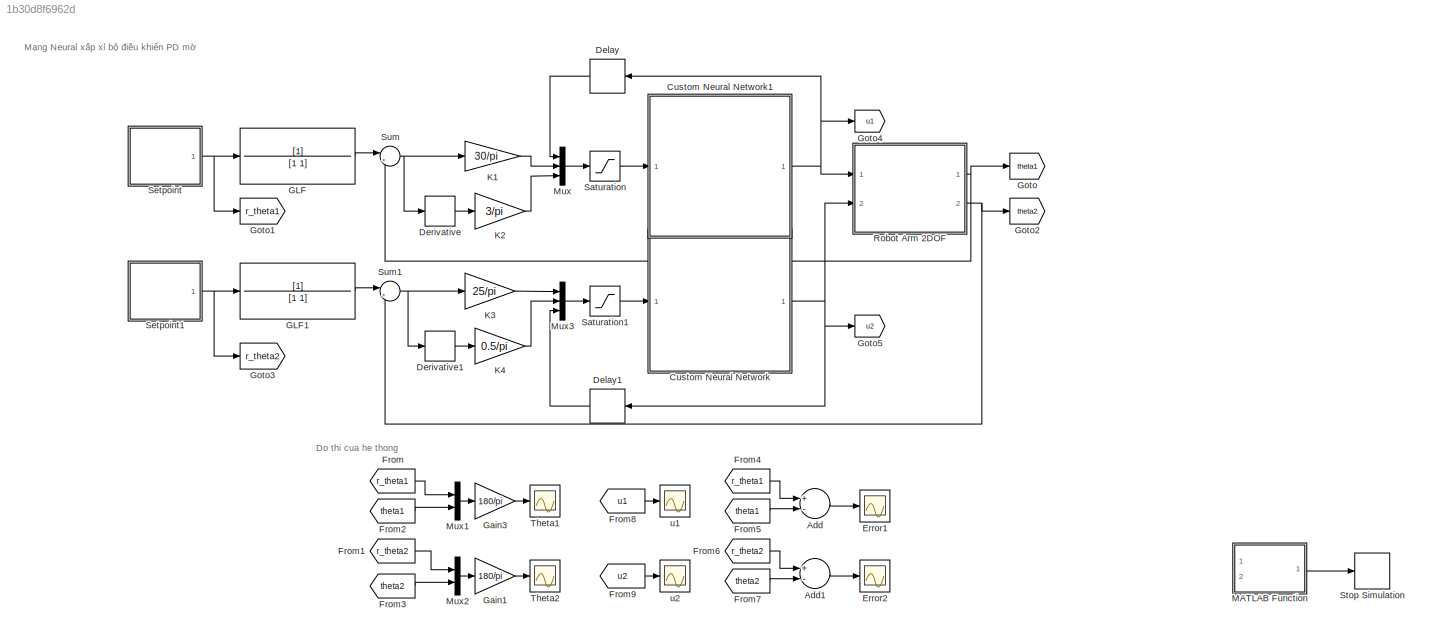
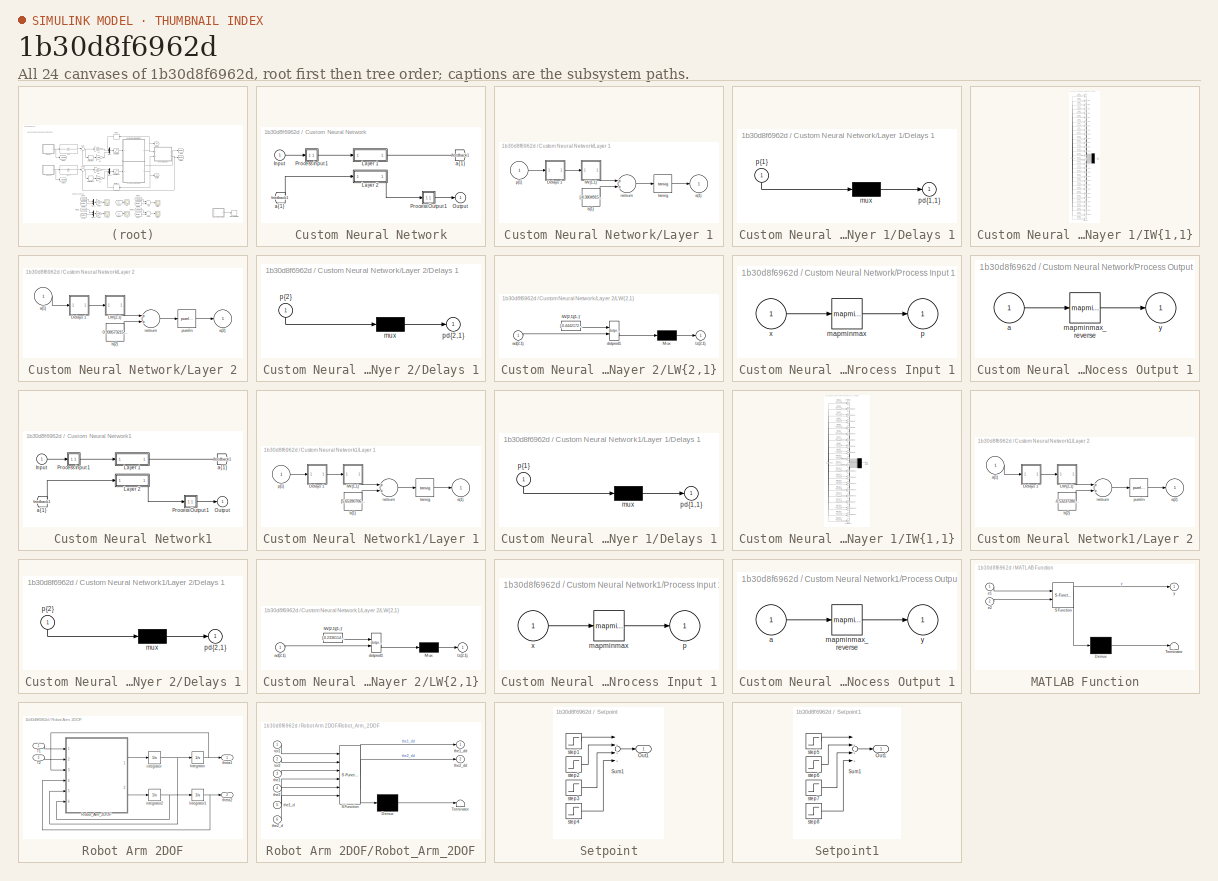
[diagram: thumbnail index - all 24 canvases of the model, root first then tree order]
MODEL slx_1b30d8f6962d
KIND model
CONFIG AbsTol = auto
CONFIG EnableMultiTasking = off
CONFIG FixedStep = 0.01
CONFIG MaxStep = auto
CONFIG MinStep = auto
CONFIG RelTol = 1e-3
CONFIG SampleTimeConstraint = Unconstrained
CONFIG Solver = FixedStepAuto
CONFIG SolverName = FixedStepAuto
CONFIG StartTime = 0.0
CONFIG StopTime = 40
BLOCK [Sum] Add
  InputSameDT = off
  Inputs = +-
  OutDataTypeStr = Inherit: Inherit via internal rule
  Ports = [2, 1]
  SaturateOnIntegerOverflow = off
BLOCK [Sum] Add1
  InputSameDT = off
  Inputs = +-
  OutDataTypeStr = Inherit: Inherit via internal rule
  Ports = [2, 1]
  SaturateOnIntegerOverflow = off
BLOCK [SubSystem] Custom Neural Network
  Ports = [1, 1]
  RequestExecContextInheritance = off
BLOCK [From] Custom Neural Network/ a{1} 
  GotoTag = feedback1
BLOCK [Inport] Custom Neural Network/Input
  IconDisplay = Port number
  PortDimensions = 3
BLOCK [SubSystem] Custom Neural Network/Layer 1
  Ports = [1, 1]
  RequestExecContextInheritance = off
BLOCK [SubSystem] Custom Neural Network/Layer 1/Delays 1
  Ports = [1, 1]
  RequestExecContextInheritance = off
BLOCK [Mux] Custom Neural Network/Layer 1/Delays 1/mux
  Inputs = 1
  Ports = [1, 1]
BLOCK [Outport] Custom Neural Network/Layer 1/Delays 1/pd{1,1}
  IconDisplay = Port number
BLOCK [Inport] Custom Neural Network/Layer 1/Delays 1/p{1}
  IconDisplay = Port number
  PortDimensions = 3
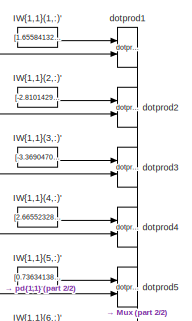
[diagram: Custom Neural Network/Layer 1/IW{1,1} - part 1/2, top center region]
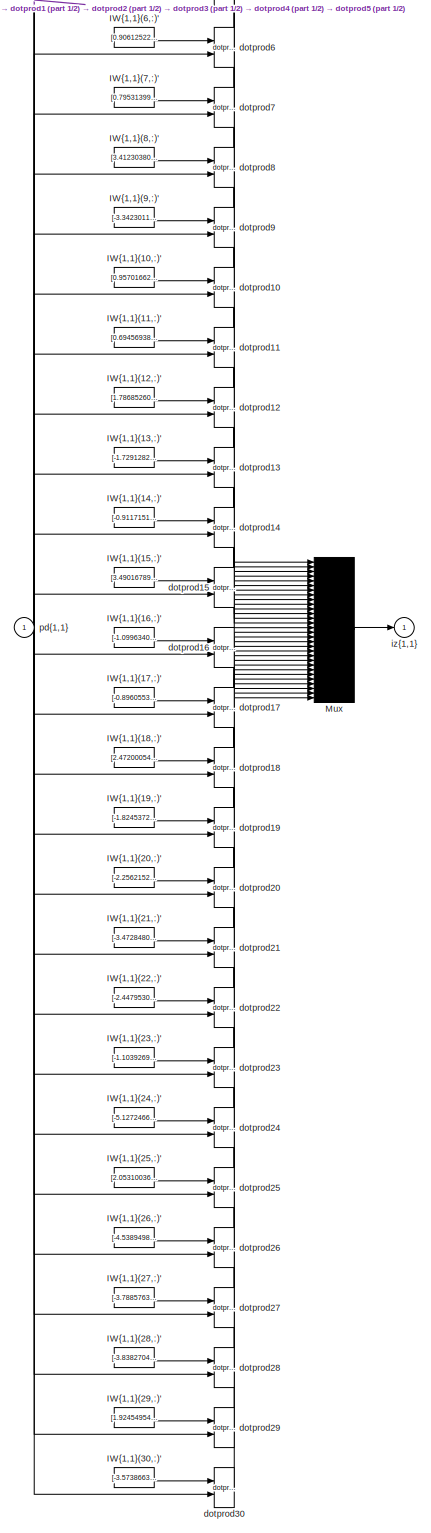
[diagram: Custom Neural Network/Layer 1/IW{1,1} - part 2/2, most of the canvas]
BLOCK [SubSystem] Custom Neural Network/Layer 1/IW{1,1}
  Ports = [1, 1]
  RequestExecContextInheritance = off
BLOCK [Constant] Custom Neural Network/Layer 1/IW{1,1}/IW{1,1}(1,:)'
  Value = [1.6558413229997686055838812535512261092662811279296875;-2.88593546757545116321352907107211649417877197265625;2.893840243870157369343587561161257326602935791015625]
BLOCK [Constant] Custom Neural Network/Layer 1/IW{1,1}/IW{1,1}(10,:)'
  Value = [0.95701662467805037604051676680683158338069915771484375;3.223260810525766739687014705850742757320404052734375;2.753146746226686758518553688190877437591552734375]
BLOCK [Constant] Custom Neural Network/Layer 1/IW{1,1}/IW{1,1}(11,:)'
  Value = [0.69456938338454798920196253675385378301143646240234375;0.389266082457671636074536536398227326571941375732421875;-4.31765651327728061659172453801147639751434326171875]
BLOCK [Constant] Custom Neural Network/Layer 1/IW{1,1}/IW{1,1}(12,:)'
  Value = [1.78685260519628474895625913632102310657501220703125;-3.15354775142139676091801447910256683826446533203125;2.288552934455779119815588273922912776470184326171875]
BLOCK [Constant] Custom Neural Network/Layer 1/IW{1,1}/IW{1,1}(13,:)'
  Value = [-1.7291282524979691981314999793539755046367645263671875;3.9000326935945981432496409979648888111114501953125;-0.4457573371262018024907547442126087844371795654296875]
BLOCK [Constant] Custom Neural Network/Layer 1/IW{1,1}/IW{1,1}(14,:)'
  Value = [-0.91171516868502167074694852999527938663959503173828125;3.810892476272762063871368809486739337444305419921875;-0.92189769559497947160053854531724937260150909423828125]
BLOCK [Constant] Custom Neural Network/Layer 1/IW{1,1}/IW{1,1}(15,:)'
  Value = [3.49016789442475783289410173892974853515625;2.29949149855442414036588161252439022064208984375;1.1064606014879190265531860859482549130916595458984375]
BLOCK [Constant] Custom Neural Network/Layer 1/IW{1,1}/IW{1,1}(16,:)'
  Value = [-1.099634019296264142440122668631374835968017578125;3.64942269938335339674040369573049247264862060546875;1.869327006868914953230387254734523594379425048828125]
BLOCK [Constant] Custom Neural Network/Layer 1/IW{1,1}/IW{1,1}(17,:)'
  Value = [-0.89605532930359910182005478418432176113128662109375;-1.1931286132929634913324434819514863193035125732421875;4.03581002747470929392648031353019177913665771484375]
BLOCK [Constant] Custom Neural Network/Layer 1/IW{1,1}/IW{1,1}(18,:)'
  Value = [2.472000549882311215554864247678779065608978271484375;-3.15316693406762116325126044102944433689117431640625;-0.73747101103502721297644484366173855960369110107421875]
BLOCK [Constant] Custom Neural Network/Layer 1/IW{1,1}/IW{1,1}(19,:)'
  Value = [-1.82453720138839781128581307712011039257049560546875;2.10254270652302022170943018863908946514129638671875;-3.15908241228059250005344438250176608562469482421875]
BLOCK [Constant] Custom Neural Network/Layer 1/IW{1,1}/IW{1,1}(2,:)'
  Value = [-2.810142942037725521942093109828419983386993408203125;2.8973769395587876118725034757517278194427490234375;-1.3086710239574177450094794039614498615264892578125]
BLOCK [Constant] Custom Neural Network/Layer 1/IW{1,1}/IW{1,1}(20,:)'
  Value = [-2.256215208732478938458143602474592626094818115234375;-3.73407907232536206976192261208780109882354736328125;-0.0726237168880248251667808290221728384494781494140625]
BLOCK [Constant] Custom Neural Network/Layer 1/IW{1,1}/IW{1,1}(21,:)'
  Value = [-3.472848045460743104939638215000741183757781982421875;3.008315268270318032506338568055070936679840087890625;-1.79113714863550388400881274719722568988800048828125]
BLOCK [Constant] Custom Neural Network/Layer 1/IW{1,1}/IW{1,1}(22,:)'
  Value = [-2.447953099244660535305229132063686847686767578125;2.690129597610324108103441176353953778743743896484375;2.586592410634185323914380205678753554821014404296875]
BLOCK [Constant] Custom Neural Network/Layer 1/IW{1,1}/IW{1,1}(23,:)'
  Value = [-1.1039269392949220272015509181073866784572601318359375;-1.9595645880819410056261631325469352304935455322265625;-3.836129740577083335750785408890806138515472412109375]
BLOCK [Constant] Custom Neural Network/Layer 1/IW{1,1}/IW{1,1}(24,:)'
  Value = [-5.12724664898885240660320050665177404880523681640625;3.533888783706755187807857510051690042018890380859375;-0.96604474742380619378678829889395274221897125244140625]
BLOCK [Constant] Custom Neural Network/Layer 1/IW{1,1}/IW{1,1}(25,:)'
  Value = [2.05310036470387391460690196254290640354156494140625;-2.703246766459197925058788314345292747020721435546875;3.05992824159161269648166125989519059658050537109375]
BLOCK [Constant] Custom Neural Network/Layer 1/IW{1,1}/IW{1,1}(26,:)'
  Value = [-4.53894987116645598490549673442728817462921142578125;1.2286953799032029888138595197233371436595916748046875;0.817002356070101853902087896130979061126708984375]
BLOCK [Constant] Custom Neural Network/Layer 1/IW{1,1}/IW{1,1}(27,:)'
  Value = [-3.7885763537960439606422369251959025859832763671875;2.19958419454972187168095842935144901275634765625;-0.3286263790443426646703528604120947420597076416015625]
BLOCK [Constant] Custom Neural Network/Layer 1/IW{1,1}/IW{1,1}(28,:)'
  Value = [-3.838270426274632551866261565010063350200653076171875;0.636559715617647459140471255523152649402618408203125;1.9424951340324343451726463172235526144504547119140625]
BLOCK [Constant] Custom Neural Network/Layer 1/IW{1,1}/IW{1,1}(29,:)'
  Value = [1.924549540828691451821441660285927355289459228515625;-3.3358923493614298649845295585691928863525390625;-2.894251923980123653024065788486041128635406494140625]
BLOCK [Constant] Custom Neural Network/Layer 1/IW{1,1}/IW{1,1}(3,:)'
  Value = [-3.369047054399987306538832854130305349826812744140625;1.525177058134571606018425882211886346340179443359375;-2.978275142861879221101162329432554543018341064453125]
BLOCK [Constant] Custom Neural Network/Layer 1/IW{1,1}/IW{1,1}(30,:)'
  Value = [-3.573866361424696602711037485278211534023284912109375;3.002759769619417706820740932016633450984954833984375;0.1302767623615861680708150061036576516926288604736328125]
BLOCK [Constant] Custom Neural Network/Layer 1/IW{1,1}/IW{1,1}(4,:)'
  Value = [2.6655232835898932108875669655390083789825439453125;-1.295278003202639194313405823777429759502410888671875;-3.187730136641317102430548402480781078338623046875]
BLOCK [Constant] Custom Neural Network/Layer 1/IW{1,1}/IW{1,1}(5,:)'
  Value = [0.73634138504999857577359989591059274971485137939453125;3.273945461693440250883213593624532222747802734375;-2.31920806796864642507216558442451059818267822265625]
BLOCK [Constant] Custom Neural Network/Layer 1/IW{1,1}/IW{1,1}(6,:)'
  Value = [0.90612522908061532422863137981039471924304962158203125;-2.916748783371946984743772190995514392852783203125;-3.090051823917535411823109825490973889827728271484375]
BLOCK [Constant] Custom Neural Network/Layer 1/IW{1,1}/IW{1,1}(7,:)'
  Value = [0.7953139979306753648558014901936985552310943603515625;-4.15125830024364450565599327092058956623077392578125;0.71385197867895622270140165710472501814365386962890625]
BLOCK [Constant] Custom Neural Network/Layer 1/IW{1,1}/IW{1,1}(8,:)'
  Value = [3.41230380179532399864683611667715013027191162109375;0.393946879414985351441913508097059093415737152099609375;2.22225764840542350242458269349299371242523193359375]
BLOCK [Constant] Custom Neural Network/Layer 1/IW{1,1}/IW{1,1}(9,:)'
  Value = [-3.342301174328975665872576428228057920932769775390625;-0.63486662583196373788041455554775893688201904296875;1.341335984506971445995304748066700994968414306640625]
BLOCK [Mux] Custom Neural Network/Layer 1/IW{1,1}/Mux
  Inputs = 30
  Ports = [30, 1]
BLOCK [Reference] Custom Neural Network/Layer 1/IW{1,1}/dotprod1  REF=neural/Weight Functions/dotprod
  Ports = [2, 1]
  SourceBlock = neural/Weight Functions/dotprod
  SourceProductBaseCode = NN
  SourceProductName = Neural Network Toolbox
  SourceType = DOTPROD
BLOCK [Reference] Custom Neural Network/Layer 1/IW{1,1}/dotprod10  REF=neural/Weight Functions/dotprod
  Ports = [2, 1]
  SourceBlock = neural/Weight Functions/dotprod
  SourceProductBaseCode = NN
  SourceProductName = Neural Network Toolbox
  SourceType = DOTPROD
BLOCK [Reference] Custom Neural Network/Layer 1/IW{1,1}/dotprod11  REF=neural/Weight Functions/dotprod
  Ports = [2, 1]
  SourceBlock = neural/Weight Functions/dotprod
  SourceProductBaseCode = NN
  SourceProductName = Neural Network Toolbox
  SourceType = DOTPROD
BLOCK [Reference] Custom Neural Network/Layer 1/IW{1,1}/dotprod12  REF=neural/Weight Functions/dotprod
  Ports = [2, 1]
  SourceBlock = neural/Weight Functions/dotprod
  SourceProductBaseCode = NN
  SourceProductName = Neural Network Toolbox
  SourceType = DOTPROD
BLOCK [Reference] Custom Neural Network/Layer 1/IW{1,1}/dotprod13  REF=neural/Weight Functions/dotprod
  Ports = [2, 1]
  SourceBlock = neural/Weight Functions/dotprod
  SourceProductBaseCode = NN
  SourceProductName = Neural Network Toolbox
  SourceType = DOTPROD
BLOCK [Reference] Custom Neural Network/Layer 1/IW{1,1}/dotprod14  REF=neural/Weight Functions/dotprod
  Ports = [2, 1]
  SourceBlock = neural/Weight Functions/dotprod
  SourceProductBaseCode = NN
  SourceProductName = Neural Network Toolbox
  SourceType = DOTPROD
BLOCK [Reference] Custom Neural Network/Layer 1/IW{1,1}/dotprod15  REF=neural/Weight Functions/dotprod
  Ports = [2, 1]
  SourceBlock = neural/Weight Functions/dotprod
  SourceProductBaseCode = NN
  SourceProductName = Neural Network Toolbox
  SourceType = DOTPROD
BLOCK [Reference] Custom Neural Network/Layer 1/IW{1,1}/dotprod16  REF=neural/Weight Functions/dotprod
  Ports = [2, 1]
  SourceBlock = neural/Weight Functions/dotprod
  SourceProductBaseCode = NN
  SourceProductName = Neural Network Toolbox
  SourceType = DOTPROD
BLOCK [Reference] Custom Neural Network/Layer 1/IW{1,1}/dotprod17  REF=neural/Weight Functions/dotprod
  Ports = [2, 1]
  SourceBlock = neural/Weight Functions/dotprod
  SourceProductBaseCode = NN
  SourceProductName = Neural Network Toolbox
  SourceType = DOTPROD
BLOCK [Reference] Custom Neural Network/Layer 1/IW{1,1}/dotprod18  REF=neural/Weight Functions/dotprod
  Ports = [2, 1]
  SourceBlock = neural/Weight Functions/dotprod
  SourceProductBaseCode = NN
  SourceProductName = Neural Network Toolbox
  SourceType = DOTPROD
BLOCK [Reference] Custom Neural Network/Layer 1/IW{1,1}/dotprod19  REF=neural/Weight Functions/dotprod
  Ports = [2, 1]
  SourceBlock = neural/Weight Functions/dotprod
  SourceProductBaseCode = NN
  SourceProductName = Neural Network Toolbox
  SourceType = DOTPROD
BLOCK [Reference] Custom Neural Network/Layer 1/IW{1,1}/dotprod2  REF=neural/Weight Functions/dotprod
  Ports = [2, 1]
  SourceBlock = neural/Weight Functions/dotprod
  SourceProductBaseCode = NN
  SourceProductName = Neural Network Toolbox
  SourceType = DOTPROD
BLOCK [Reference] Custom Neural Network/Layer 1/IW{1,1}/dotprod20  REF=neural/Weight Functions/dotprod
  Ports = [2, 1]
  SourceBlock = neural/Weight Functions/dotprod
  SourceProductBaseCode = NN
  SourceProductName = Neural Network Toolbox
  SourceType = DOTPROD
BLOCK [Reference] Custom Neural Network/Layer 1/IW{1,1}/dotprod21  REF=neural/Weight Functions/dotprod
  Ports = [2, 1]
  SourceBlock = neural/Weight Functions/dotprod
  SourceProductBaseCode = NN
  SourceProductName = Neural Network Toolbox
  SourceType = DOTPROD
BLOCK [Reference] Custom Neural Network/Layer 1/IW{1,1}/dotprod22  REF=neural/Weight Functions/dotprod
  Ports = [2, 1]
  SourceBlock = neural/Weight Functions/dotprod
  SourceProductBaseCode = NN
  SourceProductName = Neural Network Toolbox
  SourceType = DOTPROD
BLOCK [Reference] Custom Neural Network/Layer 1/IW{1,1}/dotprod23  REF=neural/Weight Functions/dotprod
  Ports = [2, 1]
  SourceBlock = neural/Weight Functions/dotprod
  SourceProductBaseCode = NN
  SourceProductName = Neural Network Toolbox
  SourceType = DOTPROD
BLOCK [Reference] Custom Neural Network/Layer 1/IW{1,1}/dotprod24  REF=neural/Weight Functions/dotprod
  Ports = [2, 1]
  SourceBlock = neural/Weight Functions/dotprod
  SourceProductBaseCode = NN
  SourceProductName = Neural Network Toolbox
  SourceType = DOTPROD
BLOCK [Reference] Custom Neural Network/Layer 1/IW{1,1}/dotprod25  REF=neural/Weight Functions/dotprod
  Ports = [2, 1]
  SourceBlock = neural/Weight Functions/dotprod
  SourceProductBaseCode = NN
  SourceProductName = Neural Network Toolbox
  SourceType = DOTPROD
BLOCK [Reference] Custom Neural Network/Layer 1/IW{1,1}/dotprod26  REF=neural/Weight Functions/dotprod
  Ports = [2, 1]
  SourceBlock = neural/Weight Functions/dotprod
  SourceProductBaseCode = NN
  SourceProductName = Neural Network Toolbox
  SourceType = DOTPROD
BLOCK [Reference] Custom Neural Network/Layer 1/IW{1,1}/dotprod27  REF=neural/Weight Functions/dotprod
  Ports = [2, 1]
  SourceBlock = neural/Weight Functions/dotprod
  SourceProductBaseCode = NN
  SourceProductName = Neural Network Toolbox
  SourceType = DOTPROD
BLOCK [Reference] Custom Neural Network/Layer 1/IW{1,1}/dotprod28  REF=neural/Weight Functions/dotprod
  Ports = [2, 1]
  SourceBlock = neural/Weight Functions/dotprod
  SourceProductBaseCode = NN
  SourceProductName = Neural Network Toolbox
  SourceType = DOTPROD
BLOCK [Reference] Custom Neural Network/Layer 1/IW{1,1}/dotprod29  REF=neural/Weight Functions/dotprod
  Ports = [2, 1]
  SourceBlock = neural/Weight Functions/dotprod
  SourceProductBaseCode = NN
  SourceProductName = Neural Network Toolbox
  SourceType = DOTPROD
BLOCK [Reference] Custom Neural Network/Layer 1/IW{1,1}/dotprod3  REF=neural/Weight Functions/dotprod
  Ports = [2, 1]
  SourceBlock = neural/Weight Functions/dotprod
  SourceProductBaseCode = NN
  SourceProductName = Neural Network Toolbox
  SourceType = DOTPROD
BLOCK [Reference] Custom Neural Network/Layer 1/IW{1,1}/dotprod30  REF=neural/Weight Functions/dotprod
  Ports = [2, 1]
  SourceBlock = neural/Weight Functions/dotprod
  SourceProductBaseCode = NN
  SourceProductName = Neural Network Toolbox
  SourceType = DOTPROD
BLOCK [Reference] Custom Neural Network/Layer 1/IW{1,1}/dotprod4  REF=neural/Weight Functions/dotprod
  Ports = [2, 1]
  SourceBlock = neural/Weight Functions/dotprod
  SourceProductBaseCode = NN
  SourceProductName = Neural Network Toolbox
  SourceType = DOTPROD
BLOCK [Reference] Custom Neural Network/Layer 1/IW{1,1}/dotprod5  REF=neural/Weight Functions/dotprod
  Ports = [2, 1]
  SourceBlock = neural/Weight Functions/dotprod
  SourceProductBaseCode = NN
  SourceProductName = Neural Network Toolbox
  SourceType = DOTPROD
BLOCK [Reference] Custom Neural Network/Layer 1/IW{1,1}/dotprod6  REF=neural/Weight Functions/dotprod
  Ports = [2, 1]
  SourceBlock = neural/Weight Functions/dotprod
  SourceProductBaseCode = NN
  SourceProductName = Neural Network Toolbox
  SourceType = DOTPROD
BLOCK [Reference] Custom Neural Network/Layer 1/IW{1,1}/dotprod7  REF=neural/Weight Functions/dotprod
  Ports = [2, 1]
  SourceBlock = neural/Weight Functions/dotprod
  SourceProductBaseCode = NN
  SourceProductName = Neural Network Toolbox
  SourceType = DOTPROD
BLOCK [Reference] Custom Neural Network/Layer 1/IW{1,1}/dotprod8  REF=neural/Weight Functions/dotprod
  Ports = [2, 1]
  SourceBlock = neural/Weight Functions/dotprod
  SourceProductBaseCode = NN
  SourceProductName = Neural Network Toolbox
  SourceType = DOTPROD
BLOCK [Reference] Custom Neural Network/Layer 1/IW{1,1}/dotprod9  REF=neural/Weight Functions/dotprod
  Ports = [2, 1]
  SourceBlock = neural/Weight Functions/dotprod
  SourceProductBaseCode = NN
  SourceProductName = Neural Network Toolbox
  SourceType = DOTPROD
BLOCK [Outport] Custom Neural Network/Layer 1/IW{1,1}/iz{1,1}
  IconDisplay = Port number
BLOCK [Inport] Custom Neural Network/Layer 1/IW{1,1}/pd{1,1}
  IconDisplay = Port number
  PortDimensions = 3
BLOCK [Outport] Custom Neural Network/Layer 1/a{1}
  IconDisplay = Port number
  InitialOutput = [0;0;0;0;0;0;0;0;0;0;0;0;0;0;0;0;0;0;0;0;0;0;0;0;0;0;0;0;0;0]
BLOCK [Constant] Custom Neural Network/Layer 1/b{1}
  Value = [-4.3804915254682299519117805175483226776123046875;4.006191165216879568333752104081213474273681640625;3.55591928983448202217232392285950481891632080078125;-3.403455383001158907063654623925685882568359375;-3.4268906042513638254831676022149622440338134765625;-2.8963190326804948426797636784613132476806640625;-2.597787344447513913081593273091129958629608154296875;-2.39442095288891199089675865252502262...<+1213ch>
BLOCK [Sum] Custom Neural Network/Layer 1/netsum
  Inputs = 2
  Ports = [2, 1]
BLOCK [Inport] Custom Neural Network/Layer 1/p{1}
  IconDisplay = Port number
  PortDimensions = 3
BLOCK [Reference] Custom Neural Network/Layer 1/tansig  REF=neural/Transfer Functions/tansig
  Ports = [1, 1]
  SourceBlock = neural/Transfer Functions/tansig
  SourceProductBaseCode = NN
  SourceProductName = Neural Network Toolbox
  SourceType = TANSIG
BLOCK [SubSystem] Custom Neural Network/Layer 2
  Ports = [1, 1]
  RequestExecContextInheritance = off
BLOCK [SubSystem] Custom Neural Network/Layer 2/Delays 1
  Ports = [1, 1]
  RequestExecContextInheritance = off
BLOCK [Mux] Custom Neural Network/Layer 2/Delays 1/mux
  Inputs = 1
  Ports = [1, 1]
BLOCK [Outport] Custom Neural Network/Layer 2/Delays 1/pd{2,1}
  IconDisplay = Port number
BLOCK [Inport] Custom Neural Network/Layer 2/Delays 1/p{2}
  IconDisplay = Port number
  PortDimensions = 30
BLOCK [SubSystem] Custom Neural Network/Layer 2/LW{2,1}
  Ports = [1, 1]
  RequestExecContextInheritance = off
BLOCK [Constant] Custom Neural Network/Layer 2/LW{2,1}/IW{2,1}(1,:)'
  Value = [-0.444217209264688162040357610749197192490100860595703125;-0.18536331849038323316136711582657881081104278564453125;-0.357432520863871949767798241737182252109050750732421875;0.273532363350809382129824598450795747339725494384765625;0.775772645811253713787891683750785887241363525390625;-0.9991323679319228379114292692975141108036041259765625;-0.2401339672246758649709619248824310488998889923095703125;...<+1293ch>
BLOCK [Mux] Custom Neural Network/Layer 2/LW{2,1}/Mux
  Inputs = 1
  Ports = [1, 1]
BLOCK [Inport] Custom Neural Network/Layer 2/LW{2,1}/ad{2,1}
  IconDisplay = Port number
  PortDimensions = 30
BLOCK [Reference] Custom Neural Network/Layer 2/LW{2,1}/dotprod1  REF=neural/Weight Functions/dotprod
  Ports = [2, 1]
  SourceBlock = neural/Weight Functions/dotprod
  SourceProductBaseCode = NN
  SourceProductName = Neural Network Toolbox
  SourceType = DOTPROD
BLOCK [Outport] Custom Neural Network/Layer 2/LW{2,1}/lz{2,1}
  IconDisplay = Port number
BLOCK [Inport] Custom Neural Network/Layer 2/a{1} 
  IconDisplay = Port number
  PortDimensions = 30
BLOCK [Outport] Custom Neural Network/Layer 2/a{2}
  IconDisplay = Port number
  InitialOutput = 0
BLOCK [Constant] Custom Neural Network/Layer 2/b{2}
  Value = 0.9385732153835568691846447109128348529338836669921875
BLOCK [Sum] Custom Neural Network/Layer 2/netsum
  Inputs = 2
  Ports = [2, 1]
BLOCK [Reference] Custom Neural Network/Layer 2/purelin  REF=neural/Transfer Functions/purelin
  Ports = [1, 1]
  SourceBlock = neural/Transfer Functions/purelin
  SourceProductBaseCode = NN
  SourceProductName = Neural Network Toolbox
  SourceType = PURELIN
BLOCK [Outport] Custom Neural Network/Output
  IconDisplay = Port number
  InitialOutput = 0
BLOCK [SubSystem] Custom Neural Network/Process Input 1
  Ports = [1, 1]
  RequestExecContextInheritance = off
BLOCK [Reference] Custom Neural Network/Process Input 1/mapminmax  REF=neural/Processing Functions/mapminmax
  Ports = [1, 1]
  SourceBlock = neural/Processing Functions/mapminmax
  SourceProductBaseCode = NN
  SourceProductName = Neural Network Toolbox
  SourceType = MAPMINMAX Preprocess
BLOCK [Outport] Custom Neural Network/Process Input 1/p
  IconDisplay = Port number
  PortDimensions = 3
BLOCK [Inport] Custom Neural Network/Process Input 1/x
  IconDisplay = Port number
  PortDimensions = 3
BLOCK [SubSystem] Custom Neural Network/Process Output 1
  Ports = [1, 1]
  RequestExecContextInheritance = off
BLOCK [Inport] Custom Neural Network/Process Output 1/a
  IconDisplay = Port number
  PortDimensions = 1
BLOCK [Reference] Custom Neural Network/Process Output 1/mapminmax_reverse  REF=neural/Processing Functions/mapminmax_reverse
  Ports = [1, 1]
  SourceBlock = neural/Processing Functions/mapminmax_reverse
  SourceProductBaseCode = NN
  SourceProductName = Neural Network Toolbox
  SourceType = MAPMINMAX Reverse Process
BLOCK [Outport] Custom Neural Network/Process Output 1/y
  IconDisplay = Port number
  PortDimensions = 1
BLOCK [Goto] Custom Neural Network/a{1}
  GotoTag = feedback1
BLOCK [SubSystem] Custom Neural Network1
  Ports = [1, 1]
  RequestExecContextInheritance = off
BLOCK [From] Custom Neural Network1/ a{1} 
  GotoTag = feedback1
BLOCK [Inport] Custom Neural Network1/Input
  IconDisplay = Port number
  PortDimensions = 3
BLOCK [SubSystem] Custom Neural Network1/Layer 1
  Ports = [1, 1]
  RequestExecContextInheritance = off
BLOCK [SubSystem] Custom Neural Network1/Layer 1/Delays 1
  Ports = [1, 1]
  RequestExecContextInheritance = off
BLOCK [Mux] Custom Neural Network1/Layer 1/Delays 1/mux
  Inputs = 1
  Ports = [1, 1]
BLOCK [Outport] Custom Neural Network1/Layer 1/Delays 1/pd{1,1}
  IconDisplay = Port number
BLOCK [Inport] Custom Neural Network1/Layer 1/Delays 1/p{1}
  IconDisplay = Port number
  PortDimensions = 3
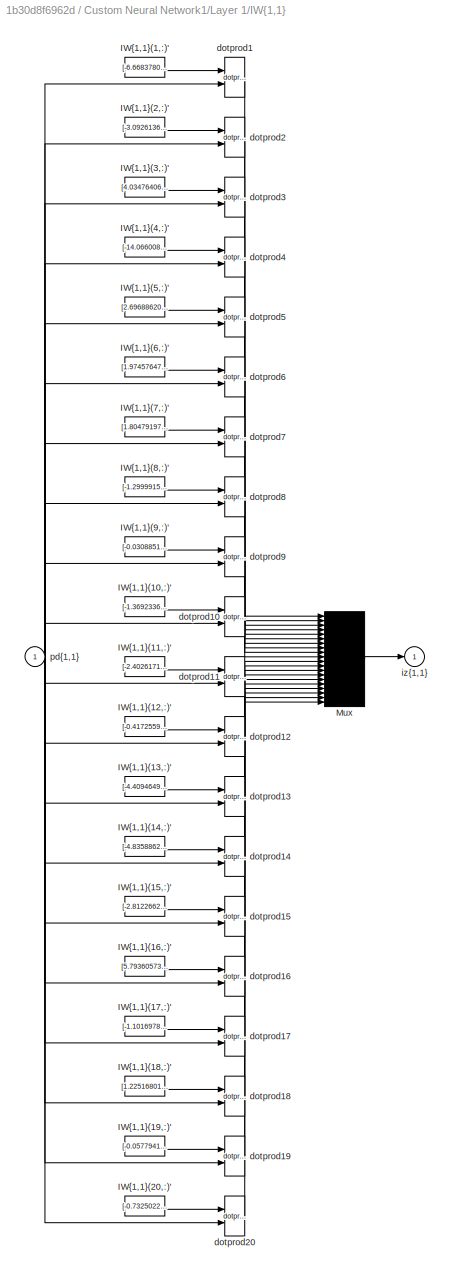
BLOCK [SubSystem] Custom Neural Network1/Layer 1/IW{1,1}
  Ports = [1, 1]
  RequestExecContextInheritance = off
BLOCK [Constant] Custom Neural Network1/Layer 1/IW{1,1}/IW{1,1}(1,:)'
  Value = [-6.6683780387114861554209710448049008846282958984375;2.207113615505974291153279409627430140972137451171875;2.94903817875376450530211513978429138660430908203125]
BLOCK [Constant] Custom Neural Network1/Layer 1/IW{1,1}/IW{1,1}(10,:)'
  Value = [-1.3692336993826532687279495803522877395153045654296875;-5.99596131451820468782898387871682643890380859375;-1.2522352635270472820394616064731962978839874267578125]
BLOCK [Constant] Custom Neural Network1/Layer 1/IW{1,1}/IW{1,1}(11,:)'
  Value = [-2.40261715288448218785788412787951529026031494140625;-2.2171857836299846411520775291137397289276123046875;-1.740208341755380416771004092879593372344970703125]
BLOCK [Constant] Custom Neural Network1/Layer 1/IW{1,1}/IW{1,1}(12,:)'
  Value = [-0.417255966847996540014520405748044140636920928955078125;1.9707272714052306294973959666094742715358734130859375;-1.9297530251762833319872925130766816437244415283203125]
BLOCK [Constant] Custom Neural Network1/Layer 1/IW{1,1}/IW{1,1}(13,:)'
  Value = [-4.4094649901161790950254726340062916278839111328125;0.7736211752009072295521718842792324721813201904296875;0.2196209920000839199705211512991809286177158355712890625]
BLOCK [Constant] Custom Neural Network1/Layer 1/IW{1,1}/IW{1,1}(14,:)'
  Value = [-4.83588628314251511852717158035375177860260009765625;1.498126336991069340598414783016778528690338134765625;2.422221783574916909032026524073444306850433349609375]
BLOCK [Constant] Custom Neural Network1/Layer 1/IW{1,1}/IW{1,1}(15,:)'
  Value = [-2.812266208951083701350626142811961472034454345703125;-2.580281648433557339927801876910962164402008056640625;0.45908435305840022966350488786702044308185577392578125]
BLOCK [Constant] Custom Neural Network1/Layer 1/IW{1,1}/IW{1,1}(16,:)'
  Value = [5.79360573757380681314543835469521582126617431640625;-2.229666801018267197065370055497623980045318603515625;0.22874266818093580422299737620051018893718719482421875]
BLOCK [Constant] Custom Neural Network1/Layer 1/IW{1,1}/IW{1,1}(17,:)'
  Value = [-1.1016978550117826340937199347536079585552215576171875;1.7232751419964211780921914396458305418491363525390625;3.524188460304824133118017925880849361419677734375]
BLOCK [Constant] Custom Neural Network1/Layer 1/IW{1,1}/IW{1,1}(18,:)'
  Value = [1.225168019549056186434654591721482574939727783203125;1.133409059053154255281015139189548790454864501953125;-3.22515464222286230011604857281781733036041259765625]
BLOCK [Constant] Custom Neural Network1/Layer 1/IW{1,1}/IW{1,1}(19,:)'
  Value = [-0.05779416817058118105432384936648304574191570281982421875;-2.656611180129016869244651388726197183132171630859375;-3.53593643683215841377887045382522046566009521484375]
BLOCK [Constant] Custom Neural Network1/Layer 1/IW{1,1}/IW{1,1}(2,:)'
  Value = [-3.0926136812189923830374027602374553680419921875;-0.288619466744694352922095959002035669982433319091796875;-1.9558125063198745774428743970929645001888275146484375]
BLOCK [Constant] Custom Neural Network1/Layer 1/IW{1,1}/IW{1,1}(20,:)'
  Value = [-0.7325022718710443303535839731921441853046417236328125;2.222171669753721712226024465053342282772064208984375;-3.183293963610989596446643190574832260608673095703125]
BLOCK [Constant] Custom Neural Network1/Layer 1/IW{1,1}/IW{1,1}(3,:)'
  Value = [4.0347640609639459086110946373082697391510009765625;-2.685473970640200658266394384554587304592132568359375;-2.1134947581166709795752467471174895763397216796875]
BLOCK [Constant] Custom Neural Network1/Layer 1/IW{1,1}/IW{1,1}(4,:)'
  Value = [-14.066008469082813547856858349405229091644287109375;5.3195970178512812509552531992085278034210205078125;-2.825176973182485173907707576290704309940338134765625]
BLOCK [Constant] Custom Neural Network1/Layer 1/IW{1,1}/IW{1,1}(5,:)'
  Value = [2.696886207855325068294405355118215084075927734375;-2.002521416627148109768086214899085462093353271484375;-1.7968636972298754894694639006047509610652923583984375]
BLOCK [Constant] Custom Neural Network1/Layer 1/IW{1,1}/IW{1,1}(6,:)'
  Value = [1.9745764737011251011011836453690193593502044677734375;-2.3719733387292922799360894714482128620147705078125;2.374780714584788565701956031261943280696868896484375]
BLOCK [Constant] Custom Neural Network1/Layer 1/IW{1,1}/IW{1,1}(7,:)'
  Value = [1.8047919798351159670346532948315143585205078125;-3.04816740869399449564980386639945209026336669921875;-1.7084156303748760930005801128572784364223480224609375]
BLOCK [Constant] Custom Neural Network1/Layer 1/IW{1,1}/IW{1,1}(8,:)'
  Value = [-1.2999915201123586339093662900268100202083587646484375;-2.780757574038355439682845826609991490840911865234375;-2.27036263261339588126475064200349152088165283203125]
BLOCK [Constant] Custom Neural Network1/Layer 1/IW{1,1}/IW{1,1}(9,:)'
  Value = [-0.0308851191351536720486326004220245522446930408477783203125;3.509228780194435959316479056724347174167633056640625;-0.04505132071412341898675180118516436778008937835693359375]
BLOCK [Mux] Custom Neural Network1/Layer 1/IW{1,1}/Mux
  Inputs = 20
  Ports = [20, 1]
BLOCK [Reference] Custom Neural Network1/Layer 1/IW{1,1}/dotprod1  REF=neural/Weight Functions/dotprod
  Ports = [2, 1]
  SourceBlock = neural/Weight Functions/dotprod
  SourceProductBaseCode = NN
  SourceProductName = Neural Network Toolbox
  SourceType = DOTPROD
BLOCK [Reference] Custom Neural Network1/Layer 1/IW{1,1}/dotprod10  REF=neural/Weight Functions/dotprod
  Ports = [2, 1]
  SourceBlock = neural/Weight Functions/dotprod
  SourceProductBaseCode = NN
  SourceProductName = Neural Network Toolbox
  SourceType = DOTPROD
BLOCK [Reference] Custom Neural Network1/Layer 1/IW{1,1}/dotprod11  REF=neural/Weight Functions/dotprod
  Ports = [2, 1]
  SourceBlock = neural/Weight Functions/dotprod
  SourceProductBaseCode = NN
  SourceProductName = Neural Network Toolbox
  SourceType = DOTPROD
BLOCK [Reference] Custom Neural Network1/Layer 1/IW{1,1}/dotprod12  REF=neural/Weight Functions/dotprod
  Ports = [2, 1]
  SourceBlock = neural/Weight Functions/dotprod
  SourceProductBaseCode = NN
  SourceProductName = Neural Network Toolbox
  SourceType = DOTPROD
BLOCK [Reference] Custom Neural Network1/Layer 1/IW{1,1}/dotprod13  REF=neural/Weight Functions/dotprod
  Ports = [2, 1]
  SourceBlock = neural/Weight Functions/dotprod
  SourceProductBaseCode = NN
  SourceProductName = Neural Network Toolbox
  SourceType = DOTPROD
BLOCK [Reference] Custom Neural Network1/Layer 1/IW{1,1}/dotprod14  REF=neural/Weight Functions/dotprod
  Ports = [2, 1]
  SourceBlock = neural/Weight Functions/dotprod
  SourceProductBaseCode = NN
  SourceProductName = Neural Network Toolbox
  SourceType = DOTPROD
BLOCK [Reference] Custom Neural Network1/Layer 1/IW{1,1}/dotprod15  REF=neural/Weight Functions/dotprod
  Ports = [2, 1]
  SourceBlock = neural/Weight Functions/dotprod
  SourceProductBaseCode = NN
  SourceProductName = Neural Network Toolbox
  SourceType = DOTPROD
BLOCK [Reference] Custom Neural Network1/Layer 1/IW{1,1}/dotprod16  REF=neural/Weight Functions/dotprod
  Ports = [2, 1]
  SourceBlock = neural/Weight Functions/dotprod
  SourceProductBaseCode = NN
  SourceProductName = Neural Network Toolbox
  SourceType = DOTPROD
BLOCK [Reference] Custom Neural Network1/Layer 1/IW{1,1}/dotprod17  REF=neural/Weight Functions/dotprod
  Ports = [2, 1]
  SourceBlock = neural/Weight Functions/dotprod
  SourceProductBaseCode = NN
  SourceProductName = Neural Network Toolbox
  SourceType = DOTPROD
BLOCK [Reference] Custom Neural Network1/Layer 1/IW{1,1}/dotprod18  REF=neural/Weight Functions/dotprod
  Ports = [2, 1]
  SourceBlock = neural/Weight Functions/dotprod
  SourceProductBaseCode = NN
  SourceProductName = Neural Network Toolbox
  SourceType = DOTPROD
BLOCK [Reference] Custom Neural Network1/Layer 1/IW{1,1}/dotprod19  REF=neural/Weight Functions/dotprod
  Ports = [2, 1]
  SourceBlock = neural/Weight Functions/dotprod
  SourceProductBaseCode = NN
  SourceProductName = Neural Network Toolbox
  SourceType = DOTPROD
BLOCK [Reference] Custom Neural Network1/Layer 1/IW{1,1}/dotprod2  REF=neural/Weight Functions/dotprod
  Ports = [2, 1]
  SourceBlock = neural/Weight Functions/dotprod
  SourceProductBaseCode = NN
  SourceProductName = Neural Network Toolbox
  SourceType = DOTPROD
BLOCK [Reference] Custom Neural Network1/Layer 1/IW{1,1}/dotprod20  REF=neural/Weight Functions/dotprod
  Ports = [2, 1]
  SourceBlock = neural/Weight Functions/dotprod
  SourceProductBaseCode = NN
  SourceProductName = Neural Network Toolbox
  SourceType = DOTPROD
BLOCK [Reference] Custom Neural Network1/Layer 1/IW{1,1}/dotprod3  REF=neural/Weight Functions/dotprod
  Ports = [2, 1]
  SourceBlock = neural/Weight Functions/dotprod
  SourceProductBaseCode = NN
  SourceProductName = Neural Network Toolbox
  SourceType = DOTPROD
BLOCK [Reference] Custom Neural Network1/Layer 1/IW{1,1}/dotprod4  REF=neural/Weight Functions/dotprod
  Ports = [2, 1]
  SourceBlock = neural/Weight Functions/dotprod
  SourceProductBaseCode = NN
  SourceProductName = Neural Network Toolbox
  SourceType = DOTPROD
BLOCK [Reference] Custom Neural Network1/Layer 1/IW{1,1}/dotprod5  REF=neural/Weight Functions/dotprod
  Ports = [2, 1]
  SourceBlock = neural/Weight Functions/dotprod
  SourceProductBaseCode = NN
  SourceProductName = Neural Network Toolbox
  SourceType = DOTPROD
BLOCK [Reference] Custom Neural Network1/Layer 1/IW{1,1}/dotprod6  REF=neural/Weight Functions/dotprod
  Ports = [2, 1]
  SourceBlock = neural/Weight Functions/dotprod
  SourceProductBaseCode = NN
  SourceProductName = Neural Network Toolbox
  SourceType = DOTPROD
BLOCK [Reference] Custom Neural Network1/Layer 1/IW{1,1}/dotprod7  REF=neural/Weight Functions/dotprod
  Ports = [2, 1]
  SourceBlock = neural/Weight Functions/dotprod
  SourceProductBaseCode = NN
  SourceProductName = Neural Network Toolbox
  SourceType = DOTPROD
BLOCK [Reference] Custom Neural Network1/Layer 1/IW{1,1}/dotprod8  REF=neural/Weight Functions/dotprod
  Ports = [2, 1]
  SourceBlock = neural/Weight Functions/dotprod
  SourceProductBaseCode = NN
  SourceProductName = Neural Network Toolbox
  SourceType = DOTPROD
BLOCK [Reference] Custom Neural Network1/Layer 1/IW{1,1}/dotprod9  REF=neural/Weight Functions/dotprod
  Ports = [2, 1]
  SourceBlock = neural/Weight Functions/dotprod
  SourceProductBaseCode = NN
  SourceProductName = Neural Network Toolbox
  SourceType = DOTPROD
BLOCK [Outport] Custom Neural Network1/Layer 1/IW{1,1}/iz{1,1}
  IconDisplay = Port number
BLOCK [Inport] Custom Neural Network1/Layer 1/IW{1,1}/pd{1,1}
  IconDisplay = Port number
  PortDimensions = 3
BLOCK [Outport] Custom Neural Network1/Layer 1/a{1}
  IconDisplay = Port number
  InitialOutput = [0;0;0;0;0;0;0;0;0;0;0;0;0;0;0;0;0;0;0;0]
BLOCK [Constant] Custom Neural Network1/Layer 1/b{1}
  Value = [5.653907064784004177226961473934352397918701171875;-5.2368120545932779208442298113368451595306396484375;-3.399789840695121245772725160350091755390167236328125;-0.765861103053918856886639332515187561511993408203125;-2.032466350476873184760506774182431399822235107421875;-1.6288462705875286218315523001365363597869873046875;-1.213920974094107929630581566016189754009246826171875;0.82094540463368637084...<+694ch>
BLOCK [Sum] Custom Neural Network1/Layer 1/netsum
  Inputs = 2
  Ports = [2, 1]
BLOCK [Inport] Custom Neural Network1/Layer 1/p{1}
  IconDisplay = Port number
  PortDimensions = 3
BLOCK [Reference] Custom Neural Network1/Layer 1/tansig  REF=neural/Transfer Functions/tansig
  Ports = [1, 1]
  SourceBlock = neural/Transfer Functions/tansig
  SourceProductBaseCode = NN
  SourceProductName = Neural Network Toolbox
  SourceType = TANSIG
BLOCK [SubSystem] Custom Neural Network1/Layer 2
  Ports = [1, 1]
  RequestExecContextInheritance = off
BLOCK [SubSystem] Custom Neural Network1/Layer 2/Delays 1
  Ports = [1, 1]
  RequestExecContextInheritance = off
BLOCK [Mux] Custom Neural Network1/Layer 2/Delays 1/mux
  Inputs = 1
  Ports = [1, 1]
BLOCK [Outport] Custom Neural Network1/Layer 2/Delays 1/pd{2,1}
  IconDisplay = Port number
BLOCK [Inport] Custom Neural Network1/Layer 2/Delays 1/p{2}
  IconDisplay = Port number
  PortDimensions = 20
BLOCK [SubSystem] Custom Neural Network1/Layer 2/LW{2,1}
  Ports = [1, 1]
  RequestExecContextInheritance = off
BLOCK [Constant] Custom Neural Network1/Layer 2/LW{2,1}/IW{2,1}(1,:)'
  Value = [-0.2336114531972799113201944010143051855266094207763671875;-0.296664831211967572333065845668897964060306549072265625;-0.62769314522534391809216458568698726594448089599609375;-0.2647903839304304174362414414645172655582427978515625;0.63970625070432973746648031010408885776996612548828125;0.78469933319307039187862073958967812359333038330078125;0.31862658937839871686747983403620310127735137939453125;-...<+734ch>
BLOCK [Mux] Custom Neural Network1/Layer 2/LW{2,1}/Mux
  Inputs = 1
  Ports = [1, 1]
BLOCK [Inport] Custom Neural Network1/Layer 2/LW{2,1}/ad{2,1}
  IconDisplay = Port number
  PortDimensions = 20
BLOCK [Reference] Custom Neural Network1/Layer 2/LW{2,1}/dotprod1  REF=neural/Weight Functions/dotprod
  Ports = [2, 1]
  SourceBlock = neural/Weight Functions/dotprod
  SourceProductBaseCode = NN
  SourceProductName = Neural Network Toolbox
  SourceType = DOTPROD
BLOCK [Outport] Custom Neural Network1/Layer 2/LW{2,1}/lz{2,1}
  IconDisplay = Port number
BLOCK [Inport] Custom Neural Network1/Layer 2/a{1} 
  IconDisplay = Port number
  PortDimensions = 20
BLOCK [Outport] Custom Neural Network1/Layer 2/a{2}
  IconDisplay = Port number
  InitialOutput = 0
BLOCK [Constant] Custom Neural Network1/Layer 2/b{2}
  Value = -0.53237280658119223719637602698639966547489166259765625
BLOCK [Sum] Custom Neural Network1/Layer 2/netsum
  Inputs = 2
  Ports = [2, 1]
BLOCK [Reference] Custom Neural Network1/Layer 2/purelin  REF=neural/Transfer Functions/purelin
  Ports = [1, 1]
  SourceBlock = neural/Transfer Functions/purelin
  SourceProductBaseCode = NN
  SourceProductName = Neural Network Toolbox
  SourceType = PURELIN
BLOCK [Outport] Custom Neural Network1/Output
  IconDisplay = Port number
  InitialOutput = 0
BLOCK [SubSystem] Custom Neural Network1/Process Input 1
  Ports = [1, 1]
  RequestExecContextInheritance = off
BLOCK [Reference] Custom Neural Network1/Process Input 1/mapminmax  REF=neural/Processing Functions/mapminmax
  Ports = [1, 1]
  SourceBlock = neural/Processing Functions/mapminmax
  SourceProductBaseCode = NN
  SourceProductName = Neural Network Toolbox
  SourceType = MAPMINMAX Preprocess
BLOCK [Outport] Custom Neural Network1/Process Input 1/p
  IconDisplay = Port number
  PortDimensions = 3
BLOCK [Inport] Custom Neural Network1/Process Input 1/x
  IconDisplay = Port number
  PortDimensions = 3
BLOCK [SubSystem] Custom Neural Network1/Process Output 1
  Ports = [1, 1]
  RequestExecContextInheritance = off
BLOCK [Inport] Custom Neural Network1/Process Output 1/a
  IconDisplay = Port number
  PortDimensions = 1
BLOCK [Reference] Custom Neural Network1/Process Output 1/mapminmax_reverse  REF=neural/Processing Functions/mapminmax_reverse
  Ports = [1, 1]
  SourceBlock = neural/Processing Functions/mapminmax_reverse
  SourceProductBaseCode = NN
  SourceProductName = Neural Network Toolbox
  SourceType = MAPMINMAX Reverse Process
BLOCK [Outport] Custom Neural Network1/Process Output 1/y
  IconDisplay = Port number
  PortDimensions = 1
BLOCK [Goto] Custom Neural Network1/a{1}
  GotoTag = feedback1
BLOCK [Delay] Delay
  DelayLength = 1
  InitialCondition = 0
  InputPortMap = u0
  Ports = [1, 1]
BLOCK [Delay] Delay1
  DelayLength = 1
  InitialCondition = 0
  InputPortMap = u0
  Ports = [1, 1]
BLOCK [Derivative] Derivative
BLOCK [Derivative] Derivative1
BLOCK [Scope] Error1
  Floating = off
  NumInputPorts = 1
  Ports = [1]
  ScopeSpecificationString = Simulink.scopes.TimeScopeBlockCfg('CurrentConfiguration', extmgr.ConfigurationSet(extmgr.Configuration('Core','General UI',true,'FigureColor',[1 1 1]),extmgr.Configuration('Core','Source UI',true),extmgr.Configuration('Sources','WiredSimulink',true,'DataLoggingVariableName','ScopeData1'),extmgr.Configuration('Visuals','Time Domain',true,'SerializedDisplays',{struct('MinYLimReal','-1.01613','MaxYLi...<+1646ch>
BLOCK [Scope] Error2
  Floating = off
  NumInputPorts = 1
  Ports = [1]
  ScopeSpecificationString = Simulink.scopes.TimeScopeBlockCfg('CurrentConfiguration', extmgr.ConfigurationSet(extmgr.Configuration('Core','General UI',true,'FigureColor',[1 1 1]),extmgr.Configuration('Core','Source UI',true),extmgr.Configuration('Sources','WiredSimulink',true,'DataLoggingVariableName','ScopeData2'),extmgr.Configuration('Visuals','Time Domain',true,'SerializedDisplays',{struct('MinYLimReal','-1.23413','MaxYLi...<+1648ch>
BLOCK [From] From
  GotoTag = r_theta1
BLOCK [From] From1
  GotoTag = r_theta2
BLOCK [From] From2
  GotoTag = theta1
BLOCK [From] From3
  GotoTag = theta2
BLOCK [From] From4
  GotoTag = r_theta1
BLOCK [From] From5
  GotoTag = theta1
BLOCK [From] From6
  GotoTag = r_theta2
BLOCK [From] From7
  GotoTag = theta2
BLOCK [From] From8
  GotoTag = u1
BLOCK [From] From9
  GotoTag = u2
BLOCK [TransferFcn] GLF
BLOCK [TransferFcn] GLF1
BLOCK [Gain] Gain1
  Gain = 180/pi
  OutDataTypeStr = Inherit: Inherit via internal rule
  ParamDataTypeStr = Inherit: Inherit via internal rule
  SaturateOnIntegerOverflow = off
BLOCK [Gain] Gain3
  Gain = 180/pi
  OutDataTypeStr = Inherit: Inherit via internal rule
  ParamDataTypeStr = Inherit: Inherit via internal rule
  SaturateOnIntegerOverflow = off
BLOCK [Goto] Goto
  GotoTag = theta1
BLOCK [Goto] Goto1
  GotoTag = r_theta1
BLOCK [Goto] Goto2
  GotoTag = theta2
BLOCK [Goto] Goto3
  GotoTag = r_theta2
BLOCK [Goto] Goto4
  GotoTag = u1
BLOCK [Goto] Goto5
  GotoTag = u2
BLOCK [Gain] K1
  Gain = 30/pi
  OutDataTypeStr = Inherit: Inherit via internal rule
  ParamDataTypeStr = Inherit: Inherit via internal rule
  SaturateOnIntegerOverflow = off
BLOCK [Gain] K2
  Gain = 3/pi
  OutDataTypeStr = Inherit: Inherit via internal rule
  ParamDataTypeStr = Inherit: Inherit via internal rule
  SaturateOnIntegerOverflow = off
BLOCK [Gain] K3
  Gain = 25/pi
  OutDataTypeStr = Inherit: Inherit via internal rule
  ParamDataTypeStr = Inherit: Inherit via internal rule
  SaturateOnIntegerOverflow = off
BLOCK [Gain] K4
  Gain = 0.5/pi
  OutDataTypeStr = Inherit: Inherit via internal rule
  ParamDataTypeStr = Inherit: Inherit via internal rule
  SaturateOnIntegerOverflow = off
BLOCK [SubSystem] MATLAB Function
  Commented = on
  ErrorFcn = Stateflow.Translate.translate
  PermitHierarchicalResolution = ExplicitOnly
  Ports = [2, 1]
  RequestExecContextInheritance = off
  SFBlockType = MATLAB Function
  TreatAsAtomicUnit = on
BLOCK [Demux] MATLAB Function/ Demux 
  Outputs = 1
  Ports = [1, 1]
BLOCK [S-Function] MATLAB Function/ SFunction 
  EnableBusSupport = on
  FunctionName = sf_sfun
  PortCounts = [2 2]
  Ports = [2, 2]
  SFcnIsStateOwnerBlock = off
  SFunctionDeploymentMode = off
  Tag = Stateflow S-Function BO_DK_PD_MO_HE_ROBOT_2_DOF_NEURAL_2017 2
BLOCK [Terminator] MATLAB Function/ Terminator 
BLOCK [Inport] MATLAB Function/e1
  IconDisplay = Port number
BLOCK [Inport] MATLAB Function/e2
  IconDisplay = Port number
  Port = 2
BLOCK [Outport] MATLAB Function/y
  IconDisplay = Port number
BLOCK [Mux] Mux
  DisplayOption = bar
  Inputs = 3
  Ports = [3, 1]
BLOCK [Mux] Mux1
  DisplayOption = bar
  Inputs = 2
  Ports = [2, 1]
BLOCK [Mux] Mux2
  DisplayOption = bar
  Inputs = 2
  Ports = [2, 1]
BLOCK [Mux] Mux3
  DisplayOption = bar
  Inputs = 3
  Ports = [3, 1]
BLOCK [SubSystem] Robot Arm 2DOF
  Ports = [2, 2]
  RequestExecContextInheritance = off
BLOCK [Integrator] Robot Arm 2DOF/Integrator
  Ports = [1, 1]
BLOCK [Integrator] Robot Arm 2DOF/Integrator1
  Ports = [1, 1]
BLOCK [SubSystem] Robot Arm 2DOF/Robot_Arm_2DOF
  ErrorFcn = Stateflow.Translate.translate
  PermitHierarchicalResolution = ExplicitOnly
  Ports = [6, 2]
  RequestExecContextInheritance = off
  SFBlockType = MATLAB Function
  TreatAsAtomicUnit = on
BLOCK [Demux] Robot Arm 2DOF/Robot_Arm_2DOF/ Demux 
  Outputs = 1
  Ports = [1, 1]
BLOCK [S-Function] Robot Arm 2DOF/Robot_Arm_2DOF/ SFunction 
  EnableBusSupport = on
  FunctionName = sf_sfun
  PortCounts = [6 3]
  Ports = [6, 3]
  SFcnIsStateOwnerBlock = off
  SFunctionDeploymentMode = off
  Tag = Stateflow S-Function BO_DK_PD_MO_HE_ROBOT_2_DOF_NEURAL_2017 1
BLOCK [Terminator] Robot Arm 2DOF/Robot_Arm_2DOF/ Terminator 
BLOCK [Inport] Robot Arm 2DOF/Robot_Arm_2DOF/the1
  IconDisplay = Port number
  Port = 3
BLOCK [Inport] Robot Arm 2DOF/Robot_Arm_2DOF/the1_d
  IconDisplay = Port number
  Port = 5
BLOCK [Outport] Robot Arm 2DOF/Robot_Arm_2DOF/the1_dd
  IconDisplay = Port number
BLOCK [Inport] Robot Arm 2DOF/Robot_Arm_2DOF/the2
  IconDisplay = Port number
  Port = 4
BLOCK [Inport] Robot Arm 2DOF/Robot_Arm_2DOF/the2_d
  IconDisplay = Port number
  Port = 6
BLOCK [Outport] Robot Arm 2DOF/Robot_Arm_2DOF/the2_dd
  IconDisplay = Port number
  Port = 2
BLOCK [Inport] Robot Arm 2DOF/Robot_Arm_2DOF/tor1
  IconDisplay = Port number
BLOCK [Inport] Robot Arm 2DOF/Robot_Arm_2DOF/tor2
  IconDisplay = Port number
  Port = 2
BLOCK [Inport] Robot Arm 2DOF/T1
  IconDisplay = Port number
BLOCK [Inport] Robot Arm 2DOF/T2
  IconDisplay = Port number
  Port = 2
BLOCK [Integrator] Robot Arm 2DOF/integrator
  Ports = [1, 1]
BLOCK [Integrator] Robot Arm 2DOF/integrator2
  Ports = [1, 1]
BLOCK [Outport] Robot Arm 2DOF/theta1
  IconDisplay = Port number
BLOCK [Outport] Robot Arm 2DOF/theta2
  IconDisplay = Port number
  Port = 2
BLOCK [Saturate] Saturation
  InputPortMap = u0
  LowerLimit = -1
  Ports = [1, 1]
  UpperLimit = 1
BLOCK [Saturate] Saturation1
  InputPortMap = u0
  LowerLimit = -1
  Ports = [1, 1]
  UpperLimit = 1
BLOCK [SubSystem] Setpoint
  Ports = [0, 1]
  RequestExecContextInheritance = off
BLOCK [Outport] Setpoint/Out1
  IconDisplay = Port number
BLOCK [Sum] Setpoint/Sum1
  InputSameDT = off
  Inputs = |++++
  OutDataTypeStr = Inherit: Inherit via internal rule
  Ports = [4, 1]
  SaturateOnIntegerOverflow = off
BLOCK [Step] Setpoint/step1
  After = -pi/4
  SampleTime = 0
  Time = 0
BLOCK [Step] Setpoint/step2
  After = pi/4
  SampleTime = 0
  Time = 10
BLOCK [Step] Setpoint/step3
  After = -pi/6
  SampleTime = 0
  Time = 20
BLOCK [Step] Setpoint/step4
  After = 2*pi/6
  SampleTime = 0
  Time = 30
BLOCK [SubSystem] Setpoint1
  Ports = [0, 1]
  RequestExecContextInheritance = off
BLOCK [Outport] Setpoint1/Out1
  IconDisplay = Port number
BLOCK [Sum] Setpoint1/Sum1
  InputSameDT = off
  Inputs = |++++
  OutDataTypeStr = Inherit: Inherit via internal rule
  Ports = [4, 1]
  SaturateOnIntegerOverflow = off
BLOCK [Step] Setpoint1/step5
  After = pi/6
  SampleTime = 0
  Time = 0
BLOCK [Step] Setpoint1/step6
  After = -pi/3
  SampleTime = 0
  Time = 10
BLOCK [Step] Setpoint1/step7
  After = pi/6
  SampleTime = 0
  Time = 20
BLOCK [Step] Setpoint1/step8
  After = -pi/4
  SampleTime = 0
  Time = 30
BLOCK [Stop] Stop Simulation
  Commented = on
BLOCK [Sum] Sum
  IconShape = round
  InputSameDT = off
  Inputs = |+-
  OutDataTypeStr = Inherit: Inherit via internal rule
  Ports = [2, 1]
  SaturateOnIntegerOverflow = off
BLOCK [Sum] Sum1
  IconShape = round
  InputSameDT = off
  Inputs = |+-
  OutDataTypeStr = Inherit: Inherit via internal rule
  Ports = [2, 1]
  SaturateOnIntegerOverflow = off
BLOCK [Scope] Theta1
  Floating = off
  NumInputPorts = 1
  Ports = [1]
  ScopeSpecificationString = Simulink.scopes.TimeScopeBlockCfg('CurrentConfiguration', extmgr.ConfigurationSet(extmgr.Configuration('Core','General UI',true,'FigureColor',[1 1 1]),extmgr.Configuration('Core','Source UI',true),extmgr.Configuration('Sources','WiredSimulink',true),extmgr.Configuration('Visuals','Time Domain',true,'SerializedDisplays',{struct('MinYLimReal','-55.03907','MaxYLimReal','39.44879','YLabelReal','rad','...<+1689ch>
BLOCK [Scope] Theta2
  Floating = off
  NumInputPorts = 1
  Ports = [1]
  ScopeSpecificationString = Simulink.scopes.TimeScopeBlockCfg('CurrentConfiguration', extmgr.ConfigurationSet(extmgr.Configuration('Core','General UI',true,'FigureColor',[1 1 1]),extmgr.Configuration('Core','Source UI',true),extmgr.Configuration('Sources','WiredSimulink',true,'DataLoggingVariableName','ScopeData1'),extmgr.Configuration('Visuals','Time Domain',true,'SerializedDisplays',{struct('MinYLimReal','-55.26494','MaxYL...<+1728ch>
BLOCK [Scope] u1
  Floating = off
  NumInputPorts = 1
  Ports = [1]
  ScopeSpecificationString = Simulink.scopes.TimeScopeBlockCfg('CurrentConfiguration', extmgr.ConfigurationSet(extmgr.Configuration('Core','General UI',true,'FigureColor',[1 1 1]),extmgr.Configuration('Core','Source UI',true),extmgr.Configuration('Sources','WiredSimulink',true,'DataLoggingVariableName','ScopeData1'),extmgr.Configuration('Visuals','Time Domain',true,'SerializedDisplays',{struct('MinYLimReal','-5','MaxYLimReal'...<+1560ch>
BLOCK [Scope] u2
  Floating = off
  NumInputPorts = 1
  Ports = [1]
  ScopeSpecificationString = Simulink.scopes.TimeScopeBlockCfg('CurrentConfiguration', extmgr.ConfigurationSet(extmgr.Configuration('Core','General UI',true,'FigureColor',[1 1 1]),extmgr.Configuration('Core','Source UI',true),extmgr.Configuration('Sources','WiredSimulink',true,'DataLoggingVariableName','ScopeData2'),extmgr.Configuration('Visuals','Time Domain',true,'SerializedDisplays',{struct('MinYLimReal','-20','MaxYLimReal...<+1555ch>
ANNOTATION (root): Do thi cua he thong
ANNOTATION (root): Mạng Neural xấp xỉ bộ điều khiển PD mờ
LINE Add1:1 -> Error2:1
LINE Add:1 -> Error1:1
LINE Custom Neural Network/ a{1} :1 -> Custom Neural Network/Layer 2:1
LINE Custom Neural Network/Input:1 -> Custom Neural Network/Process Input 1:1
LINE Custom Neural Network/Layer 1/Delays 1/mux:1 -> Custom Neural Network/Layer 1/Delays 1/pd{1,1}:1
LINE Custom Neural Network/Layer 1/Delays 1/p{1}:1 -> Custom Neural Network/Layer 1/Delays 1/mux:1
LINE Custom Neural Network/Layer 1/Delays 1:1 -> Custom Neural Network/Layer 1/IW{1,1}:1
LINE Custom Neural Network/Layer 1/IW{1,1}/IW{1,1}(1,:)':1 -> Custom Neural Network/Layer 1/IW{1,1}/dotprod1:1
LINE Custom Neural Network/Layer 1/IW{1,1}/IW{1,1}(10,:)':1 -> Custom Neural Network/Layer 1/IW{1,1}/dotprod10:1
LINE Custom Neural Network/Layer 1/IW{1,1}/IW{1,1}(11,:)':1 -> Custom Neural Network/Layer 1/IW{1,1}/dotprod11:1
LINE Custom Neural Network/Layer 1/IW{1,1}/IW{1,1}(12,:)':1 -> Custom Neural Network/Layer 1/IW{1,1}/dotprod12:1
LINE Custom Neural Network/Layer 1/IW{1,1}/IW{1,1}(13,:)':1 -> Custom Neural Network/Layer 1/IW{1,1}/dotprod13:1
LINE Custom Neural Network/Layer 1/IW{1,1}/IW{1,1}(14,:)':1 -> Custom Neural Network/Layer 1/IW{1,1}/dotprod14:1
LINE Custom Neural Network/Layer 1/IW{1,1}/IW{1,1}(15,:)':1 -> Custom Neural Network/Layer 1/IW{1,1}/dotprod15:1
LINE Custom Neural Network/Layer 1/IW{1,1}/IW{1,1}(16,:)':1 -> Custom Neural Network/Layer 1/IW{1,1}/dotprod16:1
LINE Custom Neural Network/Layer 1/IW{1,1}/IW{1,1}(17,:)':1 -> Custom Neural Network/Layer 1/IW{1,1}/dotprod17:1
LINE Custom Neural Network/Layer 1/IW{1,1}/IW{1,1}(18,:)':1 -> Custom Neural Network/Layer 1/IW{1,1}/dotprod18:1
LINE Custom Neural Network/Layer 1/IW{1,1}/IW{1,1}(19,:)':1 -> Custom Neural Network/Layer 1/IW{1,1}/dotprod19:1
LINE Custom Neural Network/Layer 1/IW{1,1}/IW{1,1}(2,:)':1 -> Custom Neural Network/Layer 1/IW{1,1}/dotprod2:1
LINE Custom Neural Network/Layer 1/IW{1,1}/IW{1,1}(20,:)':1 -> Custom Neural Network/Layer 1/IW{1,1}/dotprod20:1
LINE Custom Neural Network/Layer 1/IW{1,1}/IW{1,1}(21,:)':1 -> Custom Neural Network/Layer 1/IW{1,1}/dotprod21:1
LINE Custom Neural Network/Layer 1/IW{1,1}/IW{1,1}(22,:)':1 -> Custom Neural Network/Layer 1/IW{1,1}/dotprod22:1
LINE Custom Neural Network/Layer 1/IW{1,1}/IW{1,1}(23,:)':1 -> Custom Neural Network/Layer 1/IW{1,1}/dotprod23:1
LINE Custom Neural Network/Layer 1/IW{1,1}/IW{1,1}(24,:)':1 -> Custom Neural Network/Layer 1/IW{1,1}/dotprod24:1
LINE Custom Neural Network/Layer 1/IW{1,1}/IW{1,1}(25,:)':1 -> Custom Neural Network/Layer 1/IW{1,1}/dotprod25:1
LINE Custom Neural Network/Layer 1/IW{1,1}/IW{1,1}(26,:)':1 -> Custom Neural Network/Layer 1/IW{1,1}/dotprod26:1
LINE Custom Neural Network/Layer 1/IW{1,1}/IW{1,1}(27,:)':1 -> Custom Neural Network/Layer 1/IW{1,1}/dotprod27:1
LINE Custom Neural Network/Layer 1/IW{1,1}/IW{1,1}(28,:)':1 -> Custom Neural Network/Layer 1/IW{1,1}/dotprod28:1
LINE Custom Neural Network/Layer 1/IW{1,1}/IW{1,1}(29,:)':1 -> Custom Neural Network/Layer 1/IW{1,1}/dotprod29:1
LINE Custom Neural Network/Layer 1/IW{1,1}/IW{1,1}(3,:)':1 -> Custom Neural Network/Layer 1/IW{1,1}/dotprod3:1
LINE Custom Neural Network/Layer 1/IW{1,1}/IW{1,1}(30,:)':1 -> Custom Neural Network/Layer 1/IW{1,1}/dotprod30:1
LINE Custom Neural Network/Layer 1/IW{1,1}/IW{1,1}(4,:)':1 -> Custom Neural Network/Layer 1/IW{1,1}/dotprod4:1
LINE Custom Neural Network/Layer 1/IW{1,1}/IW{1,1}(5,:)':1 -> Custom Neural Network/Layer 1/IW{1,1}/dotprod5:1
LINE Custom Neural Network/Layer 1/IW{1,1}/IW{1,1}(6,:)':1 -> Custom Neural Network/Layer 1/IW{1,1}/dotprod6:1
LINE Custom Neural Network/Layer 1/IW{1,1}/IW{1,1}(7,:)':1 -> Custom Neural Network/Layer 1/IW{1,1}/dotprod7:1
LINE Custom Neural Network/Layer 1/IW{1,1}/IW{1,1}(8,:)':1 -> Custom Neural Network/Layer 1/IW{1,1}/dotprod8:1
LINE Custom Neural Network/Layer 1/IW{1,1}/IW{1,1}(9,:)':1 -> Custom Neural Network/Layer 1/IW{1,1}/dotprod9:1
LINE Custom Neural Network/Layer 1/IW{1,1}/Mux:1 -> Custom Neural Network/Layer 1/IW{1,1}/iz{1,1}:1
LINE Custom Neural Network/Layer 1/IW{1,1}/dotprod10:1 -> Custom Neural Network/Layer 1/IW{1,1}/Mux:10
LINE Custom Neural Network/Layer 1/IW{1,1}/dotprod11:1 -> Custom Neural Network/Layer 1/IW{1,1}/Mux:11
LINE Custom Neural Network/Layer 1/IW{1,1}/dotprod12:1 -> Custom Neural Network/Layer 1/IW{1,1}/Mux:12
LINE Custom Neural Network/Layer 1/IW{1,1}/dotprod13:1 -> Custom Neural Network/Layer 1/IW{1,1}/Mux:13
LINE Custom Neural Network/Layer 1/IW{1,1}/dotprod14:1 -> Custom Neural Network/Layer 1/IW{1,1}/Mux:14
LINE Custom Neural Network/Layer 1/IW{1,1}/dotprod15:1 -> Custom Neural Network/Layer 1/IW{1,1}/Mux:15
LINE Custom Neural Network/Layer 1/IW{1,1}/dotprod16:1 -> Custom Neural Network/Layer 1/IW{1,1}/Mux:16
LINE Custom Neural Network/Layer 1/IW{1,1}/dotprod17:1 -> Custom Neural Network/Layer 1/IW{1,1}/Mux:17
LINE Custom Neural Network/Layer 1/IW{1,1}/dotprod18:1 -> Custom Neural Network/Layer 1/IW{1,1}/Mux:18
LINE Custom Neural Network/Layer 1/IW{1,1}/dotprod19:1 -> Custom Neural Network/Layer 1/IW{1,1}/Mux:19
LINE Custom Neural Network/Layer 1/IW{1,1}/dotprod1:1 -> Custom Neural Network/Layer 1/IW{1,1}/Mux:1
LINE Custom Neural Network/Layer 1/IW{1,1}/dotprod20:1 -> Custom Neural Network/Layer 1/IW{1,1}/Mux:20
LINE Custom Neural Network/Layer 1/IW{1,1}/dotprod21:1 -> Custom Neural Network/Layer 1/IW{1,1}/Mux:21
LINE Custom Neural Network/Layer 1/IW{1,1}/dotprod22:1 -> Custom Neural Network/Layer 1/IW{1,1}/Mux:22
LINE Custom Neural Network/Layer 1/IW{1,1}/dotprod23:1 -> Custom Neural Network/Layer 1/IW{1,1}/Mux:23
LINE Custom Neural Network/Layer 1/IW{1,1}/dotprod24:1 -> Custom Neural Network/Layer 1/IW{1,1}/Mux:24
LINE Custom Neural Network/Layer 1/IW{1,1}/dotprod25:1 -> Custom Neural Network/Layer 1/IW{1,1}/Mux:25
LINE Custom Neural Network/Layer 1/IW{1,1}/dotprod26:1 -> Custom Neural Network/Layer 1/IW{1,1}/Mux:26
LINE Custom Neural Network/Layer 1/IW{1,1}/dotprod27:1 -> Custom Neural Network/Layer 1/IW{1,1}/Mux:27
LINE Custom Neural Network/Layer 1/IW{1,1}/dotprod28:1 -> Custom Neural Network/Layer 1/IW{1,1}/Mux:28
LINE Custom Neural Network/Layer 1/IW{1,1}/dotprod29:1 -> Custom Neural Network/Layer 1/IW{1,1}/Mux:29
LINE Custom Neural Network/Layer 1/IW{1,1}/dotprod2:1 -> Custom Neural Network/Layer 1/IW{1,1}/Mux:2
LINE Custom Neural Network/Layer 1/IW{1,1}/dotprod30:1 -> Custom Neural Network/Layer 1/IW{1,1}/Mux:30
LINE Custom Neural Network/Layer 1/IW{1,1}/dotprod3:1 -> Custom Neural Network/Layer 1/IW{1,1}/Mux:3
LINE Custom Neural Network/Layer 1/IW{1,1}/dotprod4:1 -> Custom Neural Network/Layer 1/IW{1,1}/Mux:4
LINE Custom Neural Network/Layer 1/IW{1,1}/dotprod5:1 -> Custom Neural Network/Layer 1/IW{1,1}/Mux:5
LINE Custom Neural Network/Layer 1/IW{1,1}/dotprod6:1 -> Custom Neural Network/Layer 1/IW{1,1}/Mux:6
LINE Custom Neural Network/Layer 1/IW{1,1}/dotprod7:1 -> Custom Neural Network/Layer 1/IW{1,1}/Mux:7
LINE Custom Neural Network/Layer 1/IW{1,1}/dotprod8:1 -> Custom Neural Network/Layer 1/IW{1,1}/Mux:8
LINE Custom Neural Network/Layer 1/IW{1,1}/dotprod9:1 -> Custom Neural Network/Layer 1/IW{1,1}/Mux:9
NET Custom Neural Network/Layer 1/IW{1,1}/pd{1,1}:1 -> Custom Neural Network/Layer 1/IW{1,1}/dotprod10:2, Custom Neural Network/Layer 1/IW{1,1}/dotprod11:2, Custom Neural Network/Layer 1/IW{1,1}/dotprod12:2, Custom Neural Network/Layer 1/IW{1,1}/dotprod13:2, Custom Neural Network/Layer 1/IW{1,1}/dotprod14:2, Custom Neural Network/Layer 1/IW{1,1}/dotprod15:2, Custom Neural Network/Layer 1/IW{1,1}/dotprod16:2, Custom Neural Network/Layer 1/IW{1,1}/dotprod17:2, Custom Neural Network/Layer 1/IW{1,1}/dotprod18:2, Custom Neural Network/Layer 1/IW{1,1}/dotprod19:2, Custom Neural Network/Layer 1/IW{1,1}/dotprod1:2, Custom Neural Network/Layer 1/IW{1,1}/dotprod20:2, Custom Neural Network/Layer 1/IW{1,1}/dotprod21:2, Custom Neural Network/Layer 1/IW{1,1}/dotprod22:2, Custom Neural Network/Layer 1/IW{1,1}/dotprod23:2, Custom Neural Network/Layer 1/IW{1,1}/dotprod24:2, Custom Neural Network/Layer 1/IW{1,1}/dotprod25:2, Custom Neural Network/Layer 1/IW{1,1}/dotprod26:2, Custom Neural Network/Layer 1/IW{1,1}/dotprod27:2, Custom Neural Network/Layer 1/IW{1,1}/dotprod28:2, Custom Neural Network/Layer 1/IW{1,1}/dotprod29:2, Custom Neural Network/Layer 1/IW{1,1}/dotprod2:2, Custom Neural Network/Layer 1/IW{1,1}/dotprod30:2, Custom Neural Network/Layer 1/IW{1,1}/dotprod3:2, Custom Neural Network/Layer 1/IW{1,1}/dotprod4:2, Custom Neural Network/Layer 1/IW{1,1}/dotprod5:2, Custom Neural Network/Layer 1/IW{1,1}/dotprod6:2, Custom Neural Network/Layer 1/IW{1,1}/dotprod7:2, Custom Neural Network/Layer 1/IW{1,1}/dotprod8:2, Custom Neural Network/Layer 1/IW{1,1}/dotprod9:2
LINE Custom Neural Network/Layer 1/IW{1,1}:1 -> Custom Neural Network/Layer 1/netsum:1
LINE Custom Neural Network/Layer 1/b{1}:1 -> Custom Neural Network/Layer 1/netsum:2
LINE Custom Neural Network/Layer 1/netsum:1 -> Custom Neural Network/Layer 1/tansig:1
LINE Custom Neural Network/Layer 1/p{1}:1 -> Custom Neural Network/Layer 1/Delays 1:1
LINE Custom Neural Network/Layer 1/tansig:1 -> Custom Neural Network/Layer 1/a{1}:1
LINE Custom Neural Network/Layer 1:1 -> Custom Neural Network/a{1}:1
LINE Custom Neural Network/Layer 2/Delays 1/mux:1 -> Custom Neural Network/Layer 2/Delays 1/pd{2,1}:1
LINE Custom Neural Network/Layer 2/Delays 1/p{2}:1 -> Custom Neural Network/Layer 2/Delays 1/mux:1
LINE Custom Neural Network/Layer 2/Delays 1:1 -> Custom Neural Network/Layer 2/LW{2,1}:1
LINE Custom Neural Network/Layer 2/LW{2,1}/IW{2,1}(1,:)':1 -> Custom Neural Network/Layer 2/LW{2,1}/dotprod1:1
LINE Custom Neural Network/Layer 2/LW{2,1}/Mux:1 -> Custom Neural Network/Layer 2/LW{2,1}/lz{2,1}:1
LINE Custom Neural Network/Layer 2/LW{2,1}/ad{2,1}:1 -> Custom Neural Network/Layer 2/LW{2,1}/dotprod1:2
LINE Custom Neural Network/Layer 2/LW{2,1}/dotprod1:1 -> Custom Neural Network/Layer 2/LW{2,1}/Mux:1
LINE Custom Neural Network/Layer 2/LW{2,1}:1 -> Custom Neural Network/Layer 2/netsum:1
LINE Custom Neural Network/Layer 2/a{1} :1 -> Custom Neural Network/Layer 2/Delays 1:1
LINE Custom Neural Network/Layer 2/b{2}:1 -> Custom Neural Network/Layer 2/netsum:2
LINE Custom Neural Network/Layer 2/netsum:1 -> Custom Neural Network/Layer 2/purelin:1
LINE Custom Neural Network/Layer 2/purelin:1 -> Custom Neural Network/Layer 2/a{2}:1
LINE Custom Neural Network/Layer 2:1 -> Custom Neural Network/Process Output 1:1
LINE Custom Neural Network/Process Input 1/mapminmax:1 -> Custom Neural Network/Process Input 1/p:1
LINE Custom Neural Network/Process Input 1/x:1 -> Custom Neural Network/Process Input 1/mapminmax:1
LINE Custom Neural Network/Process Input 1:1 -> Custom Neural Network/Layer 1:1
LINE Custom Neural Network/Process Output 1/a:1 -> Custom Neural Network/Process Output 1/mapminmax_reverse:1
LINE Custom Neural Network/Process Output 1/mapminmax_reverse:1 -> Custom Neural Network/Process Output 1/y:1
LINE Custom Neural Network/Process Output 1:1 -> Custom Neural Network/Output:1
LINE Custom Neural Network1/ a{1} :1 -> Custom Neural Network1/Layer 2:1
LINE Custom Neural Network1/Input:1 -> Custom Neural Network1/Process Input 1:1
LINE Custom Neural Network1/Layer 1/Delays 1/mux:1 -> Custom Neural Network1/Layer 1/Delays 1/pd{1,1}:1
LINE Custom Neural Network1/Layer 1/Delays 1/p{1}:1 -> Custom Neural Network1/Layer 1/Delays 1/mux:1
LINE Custom Neural Network1/Layer 1/Delays 1:1 -> Custom Neural Network1/Layer 1/IW{1,1}:1
LINE Custom Neural Network1/Layer 1/IW{1,1}/IW{1,1}(1,:)':1 -> Custom Neural Network1/Layer 1/IW{1,1}/dotprod1:1
LINE Custom Neural Network1/Layer 1/IW{1,1}/IW{1,1}(10,:)':1 -> Custom Neural Network1/Layer 1/IW{1,1}/dotprod10:1
LINE Custom Neural Network1/Layer 1/IW{1,1}/IW{1,1}(11,:)':1 -> Custom Neural Network1/Layer 1/IW{1,1}/dotprod11:1
LINE Custom Neural Network1/Layer 1/IW{1,1}/IW{1,1}(12,:)':1 -> Custom Neural Network1/Layer 1/IW{1,1}/dotprod12:1
LINE Custom Neural Network1/Layer 1/IW{1,1}/IW{1,1}(13,:)':1 -> Custom Neural Network1/Layer 1/IW{1,1}/dotprod13:1
LINE Custom Neural Network1/Layer 1/IW{1,1}/IW{1,1}(14,:)':1 -> Custom Neural Network1/Layer 1/IW{1,1}/dotprod14:1
LINE Custom Neural Network1/Layer 1/IW{1,1}/IW{1,1}(15,:)':1 -> Custom Neural Network1/Layer 1/IW{1,1}/dotprod15:1
LINE Custom Neural Network1/Layer 1/IW{1,1}/IW{1,1}(16,:)':1 -> Custom Neural Network1/Layer 1/IW{1,1}/dotprod16:1
LINE Custom Neural Network1/Layer 1/IW{1,1}/IW{1,1}(17,:)':1 -> Custom Neural Network1/Layer 1/IW{1,1}/dotprod17:1
LINE Custom Neural Network1/Layer 1/IW{1,1}/IW{1,1}(18,:)':1 -> Custom Neural Network1/Layer 1/IW{1,1}/dotprod18:1
LINE Custom Neural Network1/Layer 1/IW{1,1}/IW{1,1}(19,:)':1 -> Custom Neural Network1/Layer 1/IW{1,1}/dotprod19:1
LINE Custom Neural Network1/Layer 1/IW{1,1}/IW{1,1}(2,:)':1 -> Custom Neural Network1/Layer 1/IW{1,1}/dotprod2:1
LINE Custom Neural Network1/Layer 1/IW{1,1}/IW{1,1}(20,:)':1 -> Custom Neural Network1/Layer 1/IW{1,1}/dotprod20:1
LINE Custom Neural Network1/Layer 1/IW{1,1}/IW{1,1}(3,:)':1 -> Custom Neural Network1/Layer 1/IW{1,1}/dotprod3:1
LINE Custom Neural Network1/Layer 1/IW{1,1}/IW{1,1}(4,:)':1 -> Custom Neural Network1/Layer 1/IW{1,1}/dotprod4:1
LINE Custom Neural Network1/Layer 1/IW{1,1}/IW{1,1}(5,:)':1 -> Custom Neural Network1/Layer 1/IW{1,1}/dotprod5:1
LINE Custom Neural Network1/Layer 1/IW{1,1}/IW{1,1}(6,:)':1 -> Custom Neural Network1/Layer 1/IW{1,1}/dotprod6:1
LINE Custom Neural Network1/Layer 1/IW{1,1}/IW{1,1}(7,:)':1 -> Custom Neural Network1/Layer 1/IW{1,1}/dotprod7:1
LINE Custom Neural Network1/Layer 1/IW{1,1}/IW{1,1}(8,:)':1 -> Custom Neural Network1/Layer 1/IW{1,1}/dotprod8:1
LINE Custom Neural Network1/Layer 1/IW{1,1}/IW{1,1}(9,:)':1 -> Custom Neural Network1/Layer 1/IW{1,1}/dotprod9:1
LINE Custom Neural Network1/Layer 1/IW{1,1}/Mux:1 -> Custom Neural Network1/Layer 1/IW{1,1}/iz{1,1}:1
LINE Custom Neural Network1/Layer 1/IW{1,1}/dotprod10:1 -> Custom Neural Network1/Layer 1/IW{1,1}/Mux:10
LINE Custom Neural Network1/Layer 1/IW{1,1}/dotprod11:1 -> Custom Neural Network1/Layer 1/IW{1,1}/Mux:11
LINE Custom Neural Network1/Layer 1/IW{1,1}/dotprod12:1 -> Custom Neural Network1/Layer 1/IW{1,1}/Mux:12
LINE Custom Neural Network1/Layer 1/IW{1,1}/dotprod13:1 -> Custom Neural Network1/Layer 1/IW{1,1}/Mux:13
LINE Custom Neural Network1/Layer 1/IW{1,1}/dotprod14:1 -> Custom Neural Network1/Layer 1/IW{1,1}/Mux:14
LINE Custom Neural Network1/Layer 1/IW{1,1}/dotprod15:1 -> Custom Neural Network1/Layer 1/IW{1,1}/Mux:15
LINE Custom Neural Network1/Layer 1/IW{1,1}/dotprod16:1 -> Custom Neural Network1/Layer 1/IW{1,1}/Mux:16
LINE Custom Neural Network1/Layer 1/IW{1,1}/dotprod17:1 -> Custom Neural Network1/Layer 1/IW{1,1}/Mux:17
LINE Custom Neural Network1/Layer 1/IW{1,1}/dotprod18:1 -> Custom Neural Network1/Layer 1/IW{1,1}/Mux:18
LINE Custom Neural Network1/Layer 1/IW{1,1}/dotprod19:1 -> Custom Neural Network1/Layer 1/IW{1,1}/Mux:19
LINE Custom Neural Network1/Layer 1/IW{1,1}/dotprod1:1 -> Custom Neural Network1/Layer 1/IW{1,1}/Mux:1
LINE Custom Neural Network1/Layer 1/IW{1,1}/dotprod20:1 -> Custom Neural Network1/Layer 1/IW{1,1}/Mux:20
LINE Custom Neural Network1/Layer 1/IW{1,1}/dotprod2:1 -> Custom Neural Network1/Layer 1/IW{1,1}/Mux:2
LINE Custom Neural Network1/Layer 1/IW{1,1}/dotprod3:1 -> Custom Neural Network1/Layer 1/IW{1,1}/Mux:3
LINE Custom Neural Network1/Layer 1/IW{1,1}/dotprod4:1 -> Custom Neural Network1/Layer 1/IW{1,1}/Mux:4
LINE Custom Neural Network1/Layer 1/IW{1,1}/dotprod5:1 -> Custom Neural Network1/Layer 1/IW{1,1}/Mux:5
LINE Custom Neural Network1/Layer 1/IW{1,1}/dotprod6:1 -> Custom Neural Network1/Layer 1/IW{1,1}/Mux:6
LINE Custom Neural Network1/Layer 1/IW{1,1}/dotprod7:1 -> Custom Neural Network1/Layer 1/IW{1,1}/Mux:7
LINE Custom Neural Network1/Layer 1/IW{1,1}/dotprod8:1 -> Custom Neural Network1/Layer 1/IW{1,1}/Mux:8
LINE Custom Neural Network1/Layer 1/IW{1,1}/dotprod9:1 -> Custom Neural Network1/Layer 1/IW{1,1}/Mux:9
NET Custom Neural Network1/Layer 1/IW{1,1}/pd{1,1}:1 -> Custom Neural Network1/Layer 1/IW{1,1}/dotprod10:2, Custom Neural Network1/Layer 1/IW{1,1}/dotprod11:2, Custom Neural Network1/Layer 1/IW{1,1}/dotprod12:2, Custom Neural Network1/Layer 1/IW{1,1}/dotprod13:2, Custom Neural Network1/Layer 1/IW{1,1}/dotprod14:2, Custom Neural Network1/Layer 1/IW{1,1}/dotprod15:2, Custom Neural Network1/Layer 1/IW{1,1}/dotprod16:2, Custom Neural Network1/Layer 1/IW{1,1}/dotprod17:2, Custom Neural Network1/Layer 1/IW{1,1}/dotprod18:2, Custom Neural Network1/Layer 1/IW{1,1}/dotprod19:2, Custom Neural Network1/Layer 1/IW{1,1}/dotprod1:2, Custom Neural Network1/Layer 1/IW{1,1}/dotprod20:2, Custom Neural Network1/Layer 1/IW{1,1}/dotprod2:2, Custom Neural Network1/Layer 1/IW{1,1}/dotprod3:2, Custom Neural Network1/Layer 1/IW{1,1}/dotprod4:2, Custom Neural Network1/Layer 1/IW{1,1}/dotprod5:2, Custom Neural Network1/Layer 1/IW{1,1}/dotprod6:2, Custom Neural Network1/Layer 1/IW{1,1}/dotprod7:2, Custom Neural Network1/Layer 1/IW{1,1}/dotprod8:2, Custom Neural Network1/Layer 1/IW{1,1}/dotprod9:2
LINE Custom Neural Network1/Layer 1/IW{1,1}:1 -> Custom Neural Network1/Layer 1/netsum:1
LINE Custom Neural Network1/Layer 1/b{1}:1 -> Custom Neural Network1/Layer 1/netsum:2
LINE Custom Neural Network1/Layer 1/netsum:1 -> Custom Neural Network1/Layer 1/tansig:1
LINE Custom Neural Network1/Layer 1/p{1}:1 -> Custom Neural Network1/Layer 1/Delays 1:1
LINE Custom Neural Network1/Layer 1/tansig:1 -> Custom Neural Network1/Layer 1/a{1}:1
LINE Custom Neural Network1/Layer 1:1 -> Custom Neural Network1/a{1}:1
LINE Custom Neural Network1/Layer 2/Delays 1/mux:1 -> Custom Neural Network1/Layer 2/Delays 1/pd{2,1}:1
LINE Custom Neural Network1/Layer 2/Delays 1/p{2}:1 -> Custom Neural Network1/Layer 2/Delays 1/mux:1
LINE Custom Neural Network1/Layer 2/Delays 1:1 -> Custom Neural Network1/Layer 2/LW{2,1}:1
LINE Custom Neural Network1/Layer 2/LW{2,1}/IW{2,1}(1,:)':1 -> Custom Neural Network1/Layer 2/LW{2,1}/dotprod1:1
LINE Custom Neural Network1/Layer 2/LW{2,1}/Mux:1 -> Custom Neural Network1/Layer 2/LW{2,1}/lz{2,1}:1
LINE Custom Neural Network1/Layer 2/LW{2,1}/ad{2,1}:1 -> Custom Neural Network1/Layer 2/LW{2,1}/dotprod1:2
LINE Custom Neural Network1/Layer 2/LW{2,1}/dotprod1:1 -> Custom Neural Network1/Layer 2/LW{2,1}/Mux:1
LINE Custom Neural Network1/Layer 2/LW{2,1}:1 -> Custom Neural Network1/Layer 2/netsum:1
LINE Custom Neural Network1/Layer 2/a{1} :1 -> Custom Neural Network1/Layer 2/Delays 1:1
LINE Custom Neural Network1/Layer 2/b{2}:1 -> Custom Neural Network1/Layer 2/netsum:2
LINE Custom Neural Network1/Layer 2/netsum:1 -> Custom Neural Network1/Layer 2/purelin:1
LINE Custom Neural Network1/Layer 2/purelin:1 -> Custom Neural Network1/Layer 2/a{2}:1
LINE Custom Neural Network1/Layer 2:1 -> Custom Neural Network1/Process Output 1:1
LINE Custom Neural Network1/Process Input 1/mapminmax:1 -> Custom Neural Network1/Process Input 1/p:1
LINE Custom Neural Network1/Process Input 1/x:1 -> Custom Neural Network1/Process Input 1/mapminmax:1
LINE Custom Neural Network1/Process Input 1:1 -> Custom Neural Network1/Layer 1:1
LINE Custom Neural Network1/Process Output 1/a:1 -> Custom Neural Network1/Process Output 1/mapminmax_reverse:1
LINE Custom Neural Network1/Process Output 1/mapminmax_reverse:1 -> Custom Neural Network1/Process Output 1/y:1
LINE Custom Neural Network1/Process Output 1:1 -> Custom Neural Network1/Output:1
NET Custom Neural Network1:1 -> Delay:1, Goto4:1, Robot Arm 2DOF:1
NET Custom Neural Network:1 -> Delay1:1, Goto5:1, Robot Arm 2DOF:2
LINE Delay1:1 -> Mux3:3
LINE Delay:1 -> Mux:1
LINE Derivative1:1 -> K4:1
LINE Derivative:1 -> K2:1
LINE From1:1 -> Mux2:1
LINE From2:1 -> Mux1:2
LINE From3:1 -> Mux2:2
LINE From4:1 -> Add:1
LINE From5:1 -> Add:2
LINE From6:1 -> Add1:1
LINE From7:1 -> Add1:2
LINE From8:1 -> u1:1
LINE From9:1 -> u2:1
LINE From:1 -> Mux1:1
LINE GLF1:1 -> Sum1:1
LINE GLF:1 -> Sum:1
LINE Gain1:1 -> Theta2:1
LINE Gain3:1 -> Theta1:1
LINE K1:1 -> Mux:2
LINE K2:1 -> Mux:3
LINE K3:1 -> Mux3:1
LINE K4:1 -> Mux3:2
LINE MATLAB Function:1 -> Stop Simulation:1
LINE Mux1:1 -> Gain3:1
LINE Mux2:1 -> Gain1:1
LINE Mux3:1 -> Saturation1:1
LINE Mux:1 -> Saturation:1
NET Robot Arm 2DOF/Integrator1:1 -> Robot Arm 2DOF/Robot_Arm_2DOF:4, Robot Arm 2DOF/theta2:1
NET Robot Arm 2DOF/Integrator:1 -> Robot Arm 2DOF/Robot_Arm_2DOF:3, Robot Arm 2DOF/theta1:1
LINE Robot Arm 2DOF/Robot_Arm_2DOF:1 -> Robot Arm 2DOF/integrator:1
LINE Robot Arm 2DOF/Robot_Arm_2DOF:2 -> Robot Arm 2DOF/integrator2:1
LINE Robot Arm 2DOF/T1:1 -> Robot Arm 2DOF/Robot_Arm_2DOF:1
LINE Robot Arm 2DOF/T2:1 -> Robot Arm 2DOF/Robot_Arm_2DOF:2
NET Robot Arm 2DOF/integrator2:1 -> Robot Arm 2DOF/Integrator1:1, Robot Arm 2DOF/Robot_Arm_2DOF:6
NET Robot Arm 2DOF/integrator:1 -> Robot Arm 2DOF/Integrator:1, Robot Arm 2DOF/Robot_Arm_2DOF:5
NET Robot Arm 2DOF:1 -> Goto:1, Sum:2
NET Robot Arm 2DOF:2 -> Goto2:1, Sum1:2
LINE Saturation1:1 -> Custom Neural Network:1
LINE Saturation:1 -> Custom Neural Network1:1
LINE Setpoint/Sum1:1 -> Setpoint/Out1:1
LINE Setpoint/step1:1 -> Setpoint/Sum1:1
LINE Setpoint/step2:1 -> Setpoint/Sum1:2
LINE Setpoint/step3:1 -> Setpoint/Sum1:3
LINE Setpoint/step4:1 -> Setpoint/Sum1:4
LINE Setpoint1/Sum1:1 -> Setpoint1/Out1:1
LINE Setpoint1/step5:1 -> Setpoint1/Sum1:1
LINE Setpoint1/step6:1 -> Setpoint1/Sum1:2
LINE Setpoint1/step7:1 -> Setpoint1/Sum1:3
LINE Setpoint1/step8:1 -> Setpoint1/Sum1:4
NET Setpoint1:1 -> GLF1:1, Goto3:1
NET Setpoint:1 -> GLF:1, Goto1:1
NET Sum1:1 -> Derivative1:1, K3:1
NET Sum:1 -> Derivative:1, K1:1
note: NET lines group one-source signal fan-out (src -> all destinations, sorted); 1:1 wires keep LINE
CHART Robot Arm 2DOF/Robot_Arm_2DOF states=1 transitions=1
  STATE_LABEL 'eML_blk_kernel()'
  STATE_LABEL 'SCRIPT:\nfunction [the1_dd,the2_dd] = PTVP(tor1,tor2,the1,the2,the1_d,the2_d)\nJ1=0.05;\nJ2=0.05;\nm1=1;\nm2=1;\nm3=0;%Khoi luong cua hai khop\nl1=1;\nl2=1;\nlc1=0.4;\nlc2=0.4;\ng=9.81;\nH11=J1+J2+m1*(lc1^2)+m2*((l1^2)+(lc2^2)+2*l1*lc2*cos(the2))+m3*(l1*l1+l2*l2+2*l1*l2*cos(the2));\nH22=J2+m2*lc2*lc2+m3*l2*l2;\nH12=J2+m2*(lc2*lc2+l1*lc2*cos(the2))+m3*(l2*l2+2*l1*l2*cos(the2));\nH21=H12;\nH=[H11 H12;\n   H21 H22];\n...<+323ch>'
CHART MATLAB Function states=1 transitions=1
  STATE_LABEL 'eML_blk_kernel()'
  STATE_LABEL 'SCRIPT:\nfunction y = fcn(e1,e2)\nif(abs(e1)>10)||(abs(e2)>10)\n    y=1;\nelse\n    y=0;\nend\nend'
